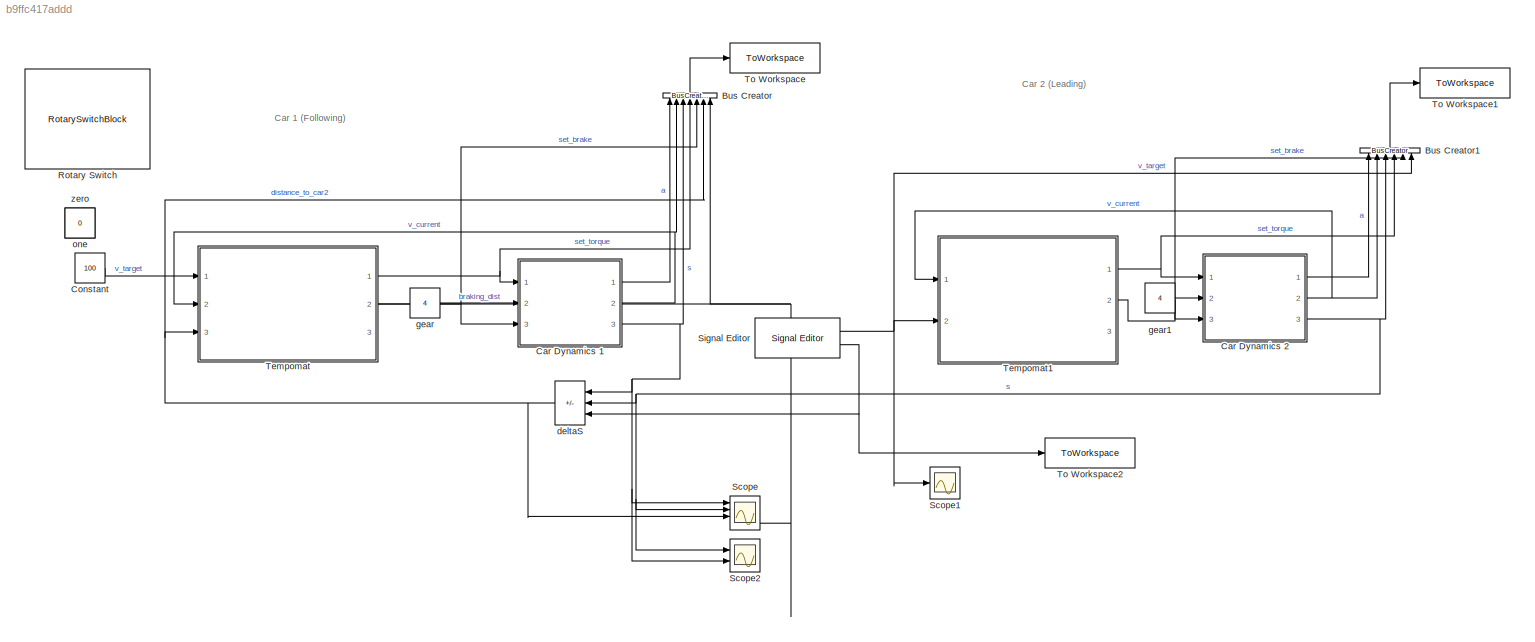
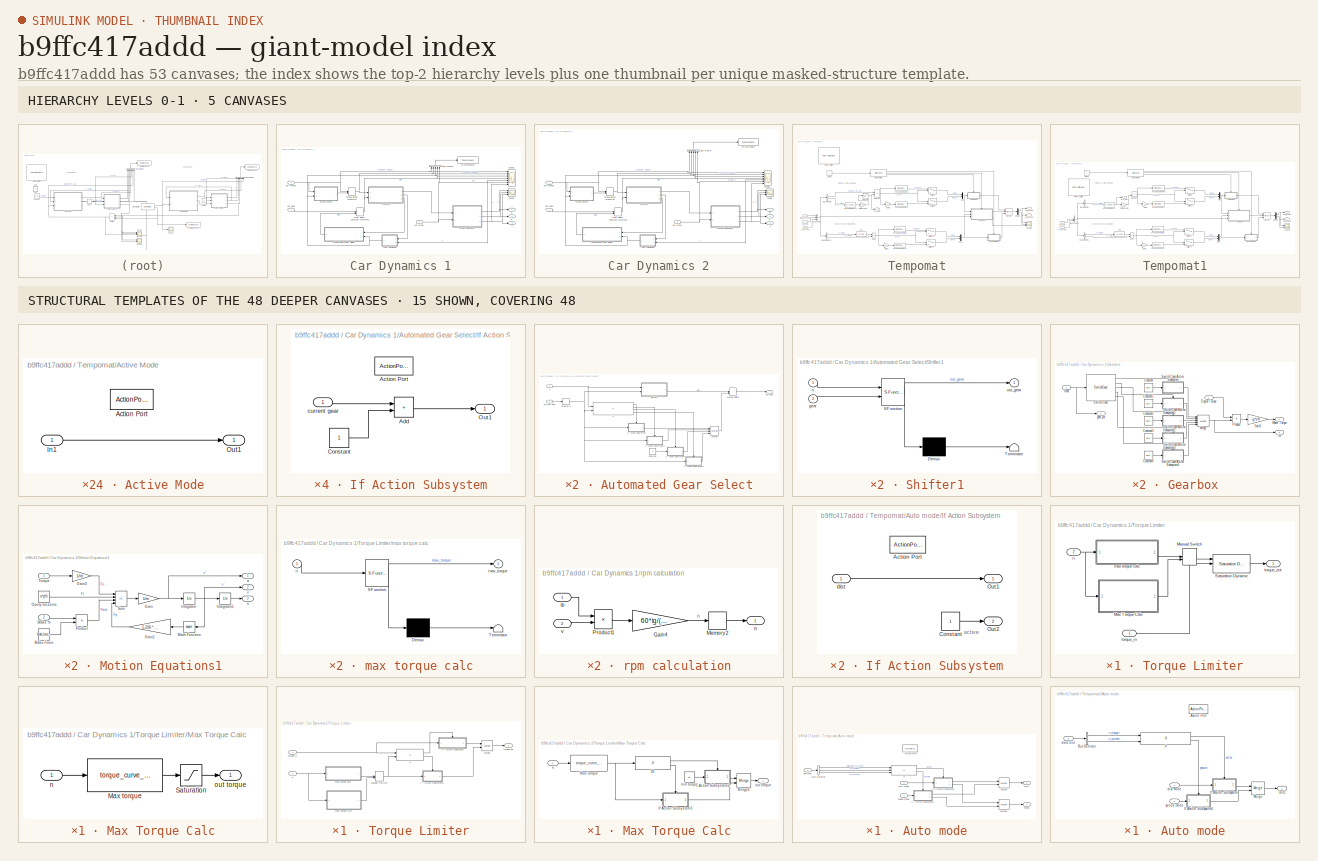
[diagram: thumbnail index - top-2 hierarchy levels (5 canvases) + 15 structural-template representatives of the remaining 48 canvases]
MODEL slx_b9ffc417addd
KIND model
CONFIG AbsTol = auto
CONFIG EnableMultiTasking = off
CONFIG FixedStep = 0.01
CONFIG MaxStep = auto
CONFIG MinStep = auto
CONFIG RelTol = 1e-3
CONFIG SampleTimeConstraint = Unconstrained
CONFIG Solver = FixedStepAuto
CONFIG SolverName = FixedStepAuto
CONFIG StartTime = 0.0
CONFIG StopTime = 120
BLOCK [BusCreator] Bus Creator
  DisplayOption = bar
  InheritFromInputs = on
  Inputs = 7
  NameLocation = right
  Ports = [7, 1]
BLOCK [BusCreator] Bus Creator1
  DisplayOption = bar
  InheritFromInputs = on
  Inputs = 6
  NameLocation = right
  Ports = [6, 1]
BLOCK [SubSystem] Car Dynamics 1
  Ports = [3, 3]
  RequestExecContextInheritance = off
BLOCK [SubSystem] Car Dynamics 1/Automated Gear Select
  NameLocation = top
  Ports = [2, 1]
  RequestExecContextInheritance = off
BLOCK [Constant] Car Dynamics 1/Automated Gear Select/Constant
BLOCK [If] Car Dynamics 1/Automated Gear Select/If
  ElseIfExpressions = (u1 < rpm_gear_down) & (u2 > 1), u2<1
  IfExpression = (u1 > rpm_gear_up) & u2 < 5
  NumInputs = 2
  Ports = [2, 4]
BLOCK [SubSystem] Car Dynamics 1/Automated Gear Select/If Action Subsystem
  Ports = [1, 1, 0, 0, 0, 0, 0, 1]
  RequestExecContextInheritance = off
  TreatAsAtomicUnit = on
BLOCK [ActionPort] Car Dynamics 1/Automated Gear Select/If Action Subsystem/Action Port
  ActionPortLabel = if((u1 > rpm_gear_up) & u2 < 5)
BLOCK [Sum] Car Dynamics 1/Automated Gear Select/If Action Subsystem/Add
  IconShape = rectangular
  Ports = [2, 1]
BLOCK [Constant] Car Dynamics 1/Automated Gear Select/If Action Subsystem/Constant
BLOCK [Outport] Car Dynamics 1/Automated Gear Select/If Action Subsystem/Out1
BLOCK [Inport] Car Dynamics 1/Automated Gear Select/If Action Subsystem/current gear
BLOCK [SubSystem] Car Dynamics 1/Automated Gear Select/If Action Subsystem1
  Ports = [1, 1, 0, 0, 0, 0, 0, 1]
  RequestExecContextInheritance = off
  TreatAsAtomicUnit = on
BLOCK [ActionPort] Car Dynamics 1/Automated Gear Select/If Action Subsystem1/Action Port
  ActionPortLabel = elseif((u1 < rpm_gear_down) & (u2 > 1))
BLOCK [Constant] Car Dynamics 1/Automated Gear Select/If Action Subsystem1/Constant
BLOCK [Outport] Car Dynamics 1/Automated Gear Select/If Action Subsystem1/Out1
BLOCK [Sum] Car Dynamics 1/Automated Gear Select/If Action Subsystem1/Subtract
  IconShape = rectangular
  Inputs = +-
  Ports = [2, 1]
BLOCK [Inport] Car Dynamics 1/Automated Gear Select/If Action Subsystem1/current gear
BLOCK [SubSystem] Car Dynamics 1/Automated Gear Select/If Action Subsystem2
  Ports = [1, 1, 0, 0, 0, 0, 0, 1]
  RequestExecContextInheritance = off
  TreatAsAtomicUnit = on
BLOCK [ActionPort] Car Dynamics 1/Automated Gear Select/If Action Subsystem2/Action Port
  ActionPortLabel = else
BLOCK [Outport] Car Dynamics 1/Automated Gear Select/If Action Subsystem2/Out1
BLOCK [Inport] Car Dynamics 1/Automated Gear Select/If Action Subsystem2/current gear
BLOCK [SubSystem] Car Dynamics 1/Automated Gear Select/If Action Subsystem3
  Ports = [1, 1, 0, 0, 0, 0, 0, 1]
  RequestExecContextInheritance = off
  TreatAsAtomicUnit = on
BLOCK [ActionPort] Car Dynamics 1/Automated Gear Select/If Action Subsystem3/Action Port
  ActionPortLabel = elseif( u2<1)
BLOCK [Inport] Car Dynamics 1/Automated Gear Select/If Action Subsystem3/In1
BLOCK [Outport] Car Dynamics 1/Automated Gear Select/If Action Subsystem3/Out1
BLOCK [ManualSwitch] Car Dynamics 1/Automated Gear Select/Manual Switch
  CurrentSetting = 0
BLOCK [Memory] Car Dynamics 1/Automated Gear Select/Memory3
BLOCK [Merge] Car Dynamics 1/Automated Gear Select/Merge
  Inputs = 4
  Ports = [4, 1]
BLOCK [SubSystem] Car Dynamics 1/Automated Gear Select/Shifter1
  ErrorFcn = Stateflow.Translate.translate
  PermitHierarchicalResolution = ExplicitOnly
  Ports = [2, 1]
  RequestExecContextInheritance = off
  SFBlockType = MATLAB Function
  TreatAsAtomicUnit = on
BLOCK [Demux] Car Dynamics 1/Automated Gear Select/Shifter1/ Demux 
  Outputs = 1
  Ports = [1, 1]
BLOCK [S-Function] Car Dynamics 1/Automated Gear Select/Shifter1/ SFunction 
  EnableBusSupport = on
  FunctionName = sf_sfun
  PortCounts = [2 2]
  Ports = [2, 2]
  SFcnIsStateOwnerBlock = off
  SFunctionDeploymentMode = off
  Tag = Stateflow S-Function 3
BLOCK [Terminator] Car Dynamics 1/Automated Gear Select/Shifter1/ Terminator 
BLOCK [Inport] Car Dynamics 1/Automated Gear Select/Shifter1/gear
  Port = 2
BLOCK [Inport] Car Dynamics 1/Automated Gear Select/Shifter1/n
BLOCK [Outport] Car Dynamics 1/Automated Gear Select/Shifter1/out_gear
BLOCK [Inport] Car Dynamics 1/Automated Gear Select/current gear
  NameLocation = top
BLOCK [Inport] Car Dynamics 1/Automated Gear Select/n
  Port = 2
BLOCK [Outport] Car Dynamics 1/Automated Gear Select/out_gear
BLOCK [BusCreator] Car Dynamics 1/Bus Creator
  DisplayOption = bar
  InheritFromInputs = on
  Inputs = 5
  NameLocation = right
  Ports = [5, 1]
BLOCK [ManualSwitch] Car Dynamics 1/Gear Select: Constant//Automatic
  CurrentSetting = 0
BLOCK [SubSystem] Car Dynamics 1/Gearbox
  Ports = [2, 3]
  RequestExecContextInheritance = off
BLOCK [Constant] Car Dynamics 1/Gearbox/Constant
  Value = ibi(1)
BLOCK [Constant] Car Dynamics 1/Gearbox/Constant1
  Value = ibi(2)
BLOCK [Constant] Car Dynamics 1/Gearbox/Constant2
  Value = ibi(3)
BLOCK [Constant] Car Dynamics 1/Gearbox/Constant3
  Value = ibi(4)
BLOCK [Constant] Car Dynamics 1/Gearbox/Constant4
  Value = ibi(5)
BLOCK [Inport] Car Dynamics 1/Gearbox/Engine Torque
BLOCK [Gain] Car Dynamics 1/Gearbox/Gain5
  Gain = ig*eff
BLOCK [Inport] Car Dynamics 1/Gearbox/Gear
  Port = 2
BLOCK [Merge] Car Dynamics 1/Gearbox/Merge
  Inputs = 5
  Ports = [5, 1]
BLOCK [Product] Car Dynamics 1/Gearbox/Product
  Ports = [2, 1]
BLOCK [SwitchCase] Car Dynamics 1/Gearbox/Switch Case
  CaseConditions = {[0,1],2,3,4,5}
  Ports = [1, 5]
  ShowDefaultCase = off
BLOCK [SubSystem] Car Dynamics 1/Gearbox/Switch Case Action Subsystem
  Ports = [1, 1, 0, 0, 0, 0, 0, 1]
  RequestExecContextInheritance = off
  TreatAsAtomicUnit = on
BLOCK [ActionPort] Car Dynamics 1/Gearbox/Switch Case Action Subsystem/Action Port
  ActionPortLabel = case [ 0 1 ]:
BLOCK [Inport] Car Dynamics 1/Gearbox/Switch Case Action Subsystem/Engine Torque
BLOCK [Outport] Car Dynamics 1/Gearbox/Switch Case Action Subsystem/Out1
BLOCK [SubSystem] Car Dynamics 1/Gearbox/Switch Case Action Subsystem1
  Ports = [1, 1, 0, 0, 0, 0, 0, 1]
  RequestExecContextInheritance = off
  TreatAsAtomicUnit = on
BLOCK [ActionPort] Car Dynamics 1/Gearbox/Switch Case Action Subsystem1/Action Port
  ActionPortLabel = case [ 2 ]:
BLOCK [Inport] Car Dynamics 1/Gearbox/Switch Case Action Subsystem1/Engine Torque
BLOCK [Outport] Car Dynamics 1/Gearbox/Switch Case Action Subsystem1/Out1
BLOCK [SubSystem] Car Dynamics 1/Gearbox/Switch Case Action Subsystem2
  Ports = [1, 1, 0, 0, 0, 0, 0, 1]
  RequestExecContextInheritance = off
  TreatAsAtomicUnit = on
BLOCK [ActionPort] Car Dynamics 1/Gearbox/Switch Case Action Subsystem2/Action Port
  ActionPortLabel = case [ 3 ]:
BLOCK [Inport] Car Dynamics 1/Gearbox/Switch Case Action Subsystem2/Engine Torque
BLOCK [Outport] Car Dynamics 1/Gearbox/Switch Case Action Subsystem2/Out1
BLOCK [SubSystem] Car Dynamics 1/Gearbox/Switch Case Action Subsystem3
  Ports = [1, 1, 0, 0, 0, 0, 0, 1]
  RequestExecContextInheritance = off
  TreatAsAtomicUnit = on
BLOCK [ActionPort] Car Dynamics 1/Gearbox/Switch Case Action Subsystem3/Action Port
  ActionPortLabel = case [ 4 ]:
BLOCK [Inport] Car Dynamics 1/Gearbox/Switch Case Action Subsystem3/Engine Torque
BLOCK [Outport] Car Dynamics 1/Gearbox/Switch Case Action Subsystem3/Out1
BLOCK [SubSystem] Car Dynamics 1/Gearbox/Switch Case Action Subsystem4
  Ports = [1, 1, 0, 0, 0, 0, 0, 1]
  RequestExecContextInheritance = off
  TreatAsAtomicUnit = on
BLOCK [ActionPort] Car Dynamics 1/Gearbox/Switch Case Action Subsystem4/Action Port
  ActionPortLabel = case [ 5 ]:
BLOCK [Inport] Car Dynamics 1/Gearbox/Switch Case Action Subsystem4/Engine Torque
BLOCK [Outport] Car Dynamics 1/Gearbox/Switch Case Action Subsystem4/Out1
BLOCK [Outport] Car Dynamics 1/Gearbox/Wheel Torque
BLOCK [Outport] Car Dynamics 1/Gearbox/gear_out
  Port = 3
BLOCK [Outport] Car Dynamics 1/Gearbox/ib
  Port = 2
BLOCK [SubSystem] Car Dynamics 1/Motion Equations1
  Ports = [2, 3]
  RequestExecContextInheritance = off
  VariantControl = Choice
BLOCK [Inport] Car Dynamics 1/Motion Equations1/Brake %
  Port = 2
BLOCK [Constant] Car Dynamics 1/Motion Equations1/Brake Force
  Value = brake_force/100
BLOCK [Gain] Car Dynamics 1/Motion Equations1/Gain
  Gain = 1/m
BLOCK [Gain] Car Dynamics 1/Motion Equations1/Gain1
  Gain = 1.226 * A * cx / 2
  NameLocation = top
BLOCK [Gain] Car Dynamics 1/Motion Equations1/Gain3
  Gain = 1/rd
BLOCK [Integrator] Car Dynamics 1/Motion Equations1/Integrator
  InitialCondition = car1_start_v
  LimitOutput = on
  LowerSaturationLimit = 0
  Ports = [1, 1]
BLOCK [Integrator] Car Dynamics 1/Motion Equations1/Integrator1
  InitialCondition = car1_start_s
  Ports = [1, 1]
BLOCK [Math] Car Dynamics 1/Motion Equations1/Math Function
  NameLocation = top
  Operator = square
  Ports = [1, 1]
BLOCK [Constant] Car Dynamics 1/Motion Equations1/Opory toczenia
  Value = m*g*f0
BLOCK [Product] Car Dynamics 1/Motion Equations1/Product
  Ports = [2, 1]
BLOCK [Sum] Car Dynamics 1/Motion Equations1/Sum
  IconShape = rectangular
  Inputs = +---
  Ports = [4, 1]
BLOCK [Inport] Car Dynamics 1/Motion Equations1/Torque
BLOCK [Outport] Car Dynamics 1/Motion Equations1/a
BLOCK [Outport] Car Dynamics 1/Motion Equations1/s
  Port = 3
BLOCK [Outport] Car Dynamics 1/Motion Equations1/v
  Port = 2
BLOCK [Scope] Car Dynamics 1/Scope
  Floating = off
  NumInputPorts = 3
  Ports = [3]
  ScopeSpecificationString = Simulink.scopes.TimeScopeBlockCfg('CurrentConfiguration', extmgr.ConfigurationSet(extmgr.Configuration('Core','General UI',true),extmgr.Configuration('Core','Source UI',true),extmgr.Configuration('Sources','WiredSimulink',true),extmgr.Configuration('Visuals','Time Domain',true,'SerializedDisplays',{struct('MinYLimReal','-0.43728','MaxYLimReal','1.78453','YLabelReal','','MinYLimMag','0.00000','MaxY...<+2701ch>
BLOCK [Scope] Car Dynamics 1/Scope1
  Floating = off
  NumInputPorts = 7
  Ports = [7]
  ScopeSpecificationString = Simulink.scopes.TimeScopeBlockCfg('CurrentConfiguration', extmgr.ConfigurationSet(extmgr.Configuration('Core','General UI',true),extmgr.Configuration('Core','Source UI',true),extmgr.Configuration('Sources','WiredSimulink',true,'DataLoggingVariableName','ScopeData1'),extmgr.Configuration('Visuals','Time Domain',true,'SerializedDisplays',{struct('MinYLimReal','-18.5','MaxYLimReal','166.5','YLabelRea...<+6155ch>
BLOCK [ToWorkspace] Car Dynamics 1/To Workspace
  FixptAsFi = on
  MaxDataPoints = inf
  Ports = [1]
  SampleTime = -1
  SaveFormat = Timeseries
  VariableName = dynamics1
BLOCK [SubSystem] Car Dynamics 1/Torque Limiter
  Ports = [2, 1]
  RequestExecContextInheritance = off
BLOCK [ManualSwitch] Car Dynamics 1/Torque Limiter/Manual Switch
  CurrentSetting = 0
BLOCK [SubSystem] Car Dynamics 1/Torque Limiter/Max Torque Calc
  Ports = [1, 1]
  RequestExecContextInheritance = off
BLOCK [Fcn] Car Dynamics 1/Torque Limiter/Max Torque Calc/Max torque
  Expr = torque_curve_f(1)*u(1)^2 + torque_curve_f(2)*u(1)+torque_curve_f(3)
BLOCK [Saturate] Car Dynamics 1/Torque Limiter/Max Torque Calc/Saturation
  LowerLimit = 30
  UpperLimit = inf
BLOCK [Inport] Car Dynamics 1/Torque Limiter/Max Torque Calc/n
BLOCK [Outport] Car Dynamics 1/Torque Limiter/Max Torque Calc/out torque
BLOCK [Reference] Car Dynamics 1/Torque Limiter/Saturation Dynamic  REF=simulink/Discontinuities/Saturation
Dynamic
  Ports = [3, 1]
  SourceBlock = simulink/Discontinuities/Saturation\nDynamic
  SourceProductBaseCode = SL
  SourceType = Saturation Dynamic
BLOCK [SubSystem] Car Dynamics 1/Torque Limiter/max torque calc
  ErrorFcn = Stateflow.Translate.translate
  PermitHierarchicalResolution = ExplicitOnly
  Ports = [1, 1]
  RequestExecContextInheritance = off
  SFBlockType = MATLAB Function
  TreatAsAtomicUnit = on
BLOCK [Demux] Car Dynamics 1/Torque Limiter/max torque calc/ Demux 
  Outputs = 1
  Ports = [1, 1]
BLOCK [S-Function] Car Dynamics 1/Torque Limiter/max torque calc/ SFunction 
  EnableBusSupport = on
  FunctionName = sf_sfun
  Parameters = torque_curve_f
  PortCounts = [1 2]
  Ports = [1, 2]
  SFcnIsStateOwnerBlock = off
  SFunctionDeploymentMode = off
  Tag = Stateflow S-Function 2
BLOCK [Terminator] Car Dynamics 1/Torque Limiter/max torque calc/ Terminator 
BLOCK [Outport] Car Dynamics 1/Torque Limiter/max torque calc/max_torque
BLOCK [Inport] Car Dynamics 1/Torque Limiter/max torque calc/n
BLOCK [Inport] Car Dynamics 1/Torque Limiter/n
  Port = 2
BLOCK [Inport] Car Dynamics 1/Torque Limiter/torque_in
BLOCK [Outport] Car Dynamics 1/Torque Limiter/torque_out
BLOCK [ManualSwitch] Car Dynamics 1/Torque limiter bypass//on
  CurrentSetting = 0
BLOCK [Outport] Car Dynamics 1/a
BLOCK [SubSystem] Car Dynamics 1/rpm calculation
  NameLocation = top
  Ports = [2, 1]
  RequestExecContextInheritance = off
BLOCK [Gain] Car Dynamics 1/rpm calculation/Gain4
  Gain = 60*ig/(2*pi*rd)
BLOCK [Memory] Car Dynamics 1/rpm calculation/Memory2
BLOCK [Product] Car Dynamics 1/rpm calculation/Product1
  Ports = [2, 1]
BLOCK [Inport] Car Dynamics 1/rpm calculation/ib
  NameLocation = top
BLOCK [Outport] Car Dynamics 1/rpm calculation/n
  NameLocation = top
BLOCK [Inport] Car Dynamics 1/rpm calculation/v
  NameLocation = top
  Port = 2
BLOCK [Outport] Car Dynamics 1/s
  Port = 3
BLOCK [Inport] Car Dynamics 1/set brake
  Port = 3
BLOCK [Inport] Car Dynamics 1/set gear
  Port = 2
BLOCK [Inport] Car Dynamics 1/set torque
BLOCK [Outport] Car Dynamics 1/v
  Port = 2
BLOCK [SubSystem] Car Dynamics 2
  Ports = [3, 3]
  RequestExecContextInheritance = off
BLOCK [SubSystem] Car Dynamics 2/Automated Gear Select
  NameLocation = top
  Ports = [2, 1]
  RequestExecContextInheritance = off
BLOCK [Constant] Car Dynamics 2/Automated Gear Select/Constant
BLOCK [If] Car Dynamics 2/Automated Gear Select/If
  ElseIfExpressions = (u1 < rpm_gear_down) & (u2 > 1), u2<1
  IfExpression = (u1 > rpm_gear_up) & u2 < 5
  NumInputs = 2
  Ports = [2, 4]
BLOCK [SubSystem] Car Dynamics 2/Automated Gear Select/If Action Subsystem
  Ports = [1, 1, 0, 0, 0, 0, 0, 1]
  RequestExecContextInheritance = off
  TreatAsAtomicUnit = on
BLOCK [ActionPort] Car Dynamics 2/Automated Gear Select/If Action Subsystem/Action Port
  ActionPortLabel = if((u1 > rpm_gear_up) & u2 < 5)
BLOCK [Sum] Car Dynamics 2/Automated Gear Select/If Action Subsystem/Add
  IconShape = rectangular
  Ports = [2, 1]
BLOCK [Constant] Car Dynamics 2/Automated Gear Select/If Action Subsystem/Constant
BLOCK [Outport] Car Dynamics 2/Automated Gear Select/If Action Subsystem/Out1
BLOCK [Inport] Car Dynamics 2/Automated Gear Select/If Action Subsystem/current gear
BLOCK [SubSystem] Car Dynamics 2/Automated Gear Select/If Action Subsystem1
  Ports = [1, 1, 0, 0, 0, 0, 0, 1]
  RequestExecContextInheritance = off
  TreatAsAtomicUnit = on
BLOCK [ActionPort] Car Dynamics 2/Automated Gear Select/If Action Subsystem1/Action Port
  ActionPortLabel = elseif((u1 < rpm_gear_down) & (u2 > 1))
BLOCK [Constant] Car Dynamics 2/Automated Gear Select/If Action Subsystem1/Constant
BLOCK [Outport] Car Dynamics 2/Automated Gear Select/If Action Subsystem1/Out1
BLOCK [Sum] Car Dynamics 2/Automated Gear Select/If Action Subsystem1/Subtract
  IconShape = rectangular
  Inputs = +-
  Ports = [2, 1]
BLOCK [Inport] Car Dynamics 2/Automated Gear Select/If Action Subsystem1/current gear
BLOCK [SubSystem] Car Dynamics 2/Automated Gear Select/If Action Subsystem2
  Ports = [1, 1, 0, 0, 0, 0, 0, 1]
  RequestExecContextInheritance = off
  TreatAsAtomicUnit = on
BLOCK [ActionPort] Car Dynamics 2/Automated Gear Select/If Action Subsystem2/Action Port
  ActionPortLabel = else
BLOCK [Outport] Car Dynamics 2/Automated Gear Select/If Action Subsystem2/Out1
BLOCK [Inport] Car Dynamics 2/Automated Gear Select/If Action Subsystem2/current gear
BLOCK [SubSystem] Car Dynamics 2/Automated Gear Select/If Action Subsystem3
  Ports = [1, 1, 0, 0, 0, 0, 0, 1]
  RequestExecContextInheritance = off
  TreatAsAtomicUnit = on
BLOCK [ActionPort] Car Dynamics 2/Automated Gear Select/If Action Subsystem3/Action Port
  ActionPortLabel = elseif( u2<1)
BLOCK [Inport] Car Dynamics 2/Automated Gear Select/If Action Subsystem3/In1
BLOCK [Outport] Car Dynamics 2/Automated Gear Select/If Action Subsystem3/Out1
BLOCK [ManualSwitch] Car Dynamics 2/Automated Gear Select/Manual Switch
  CurrentSetting = 0
BLOCK [Memory] Car Dynamics 2/Automated Gear Select/Memory3
BLOCK [Merge] Car Dynamics 2/Automated Gear Select/Merge
  Inputs = 4
  Ports = [4, 1]
BLOCK [SubSystem] Car Dynamics 2/Automated Gear Select/Shifter1
  ErrorFcn = Stateflow.Translate.translate
  PermitHierarchicalResolution = ExplicitOnly
  Ports = [2, 1]
  RequestExecContextInheritance = off
  SFBlockType = MATLAB Function
  TreatAsAtomicUnit = on
BLOCK [Demux] Car Dynamics 2/Automated Gear Select/Shifter1/ Demux 
  Outputs = 1
  Ports = [1, 1]
BLOCK [S-Function] Car Dynamics 2/Automated Gear Select/Shifter1/ SFunction 
  EnableBusSupport = on
  FunctionName = sf_sfun
  PortCounts = [2 2]
  Ports = [2, 2]
  SFcnIsStateOwnerBlock = off
  SFunctionDeploymentMode = off
  Tag = Stateflow S-Function 1
BLOCK [Terminator] Car Dynamics 2/Automated Gear Select/Shifter1/ Terminator 
BLOCK [Inport] Car Dynamics 2/Automated Gear Select/Shifter1/gear
  Port = 2
BLOCK [Inport] Car Dynamics 2/Automated Gear Select/Shifter1/n
BLOCK [Outport] Car Dynamics 2/Automated Gear Select/Shifter1/out_gear
BLOCK [Inport] Car Dynamics 2/Automated Gear Select/current gear
  NameLocation = top
BLOCK [Inport] Car Dynamics 2/Automated Gear Select/n
  Port = 2
BLOCK [Outport] Car Dynamics 2/Automated Gear Select/out_gear
BLOCK [BusCreator] Car Dynamics 2/Bus Creator
  DisplayOption = bar
  InheritFromInputs = on
  Inputs = 5
  NameLocation = right
  Ports = [5, 1]
BLOCK [ManualSwitch] Car Dynamics 2/Gear Select: Constant//Automatic
  CurrentSetting = 0
BLOCK [SubSystem] Car Dynamics 2/Gearbox
  Ports = [2, 3]
  RequestExecContextInheritance = off
BLOCK [Constant] Car Dynamics 2/Gearbox/Constant
  Value = ibi(1)
BLOCK [Constant] Car Dynamics 2/Gearbox/Constant1
  Value = ibi(2)
BLOCK [Constant] Car Dynamics 2/Gearbox/Constant2
  Value = ibi(3)
BLOCK [Constant] Car Dynamics 2/Gearbox/Constant3
  Value = ibi(4)
BLOCK [Constant] Car Dynamics 2/Gearbox/Constant4
  Value = ibi(5)
BLOCK [Inport] Car Dynamics 2/Gearbox/Engine Torque
BLOCK [Gain] Car Dynamics 2/Gearbox/Gain5
  Gain = ig*eff
BLOCK [Inport] Car Dynamics 2/Gearbox/Gear
  Port = 2
BLOCK [Merge] Car Dynamics 2/Gearbox/Merge
  Inputs = 5
  Ports = [5, 1]
BLOCK [Product] Car Dynamics 2/Gearbox/Product
  Ports = [2, 1]
BLOCK [SwitchCase] Car Dynamics 2/Gearbox/Switch Case
  CaseConditions = {[0,1],2,3,4,5}
  Ports = [1, 5]
  ShowDefaultCase = off
BLOCK [SubSystem] Car Dynamics 2/Gearbox/Switch Case Action Subsystem
  Ports = [1, 1, 0, 0, 0, 0, 0, 1]
  RequestExecContextInheritance = off
  TreatAsAtomicUnit = on
BLOCK [ActionPort] Car Dynamics 2/Gearbox/Switch Case Action Subsystem/Action Port
  ActionPortLabel = case [ 0 1 ]:
BLOCK [Inport] Car Dynamics 2/Gearbox/Switch Case Action Subsystem/Engine Torque
BLOCK [Outport] Car Dynamics 2/Gearbox/Switch Case Action Subsystem/Out1
BLOCK [SubSystem] Car Dynamics 2/Gearbox/Switch Case Action Subsystem1
  Ports = [1, 1, 0, 0, 0, 0, 0, 1]
  RequestExecContextInheritance = off
  TreatAsAtomicUnit = on
BLOCK [ActionPort] Car Dynamics 2/Gearbox/Switch Case Action Subsystem1/Action Port
  ActionPortLabel = case [ 2 ]:
BLOCK [Inport] Car Dynamics 2/Gearbox/Switch Case Action Subsystem1/Engine Torque
BLOCK [Outport] Car Dynamics 2/Gearbox/Switch Case Action Subsystem1/Out1
BLOCK [SubSystem] Car Dynamics 2/Gearbox/Switch Case Action Subsystem2
  Ports = [1, 1, 0, 0, 0, 0, 0, 1]
  RequestExecContextInheritance = off
  TreatAsAtomicUnit = on
BLOCK [ActionPort] Car Dynamics 2/Gearbox/Switch Case Action Subsystem2/Action Port
  ActionPortLabel = case [ 3 ]:
BLOCK [Inport] Car Dynamics 2/Gearbox/Switch Case Action Subsystem2/Engine Torque
BLOCK [Outport] Car Dynamics 2/Gearbox/Switch Case Action Subsystem2/Out1
BLOCK [SubSystem] Car Dynamics 2/Gearbox/Switch Case Action Subsystem3
  Ports = [1, 1, 0, 0, 0, 0, 0, 1]
  RequestExecContextInheritance = off
  TreatAsAtomicUnit = on
BLOCK [ActionPort] Car Dynamics 2/Gearbox/Switch Case Action Subsystem3/Action Port
  ActionPortLabel = case [ 4 ]:
BLOCK [Inport] Car Dynamics 2/Gearbox/Switch Case Action Subsystem3/Engine Torque
BLOCK [Outport] Car Dynamics 2/Gearbox/Switch Case Action Subsystem3/Out1
BLOCK [SubSystem] Car Dynamics 2/Gearbox/Switch Case Action Subsystem4
  Ports = [1, 1, 0, 0, 0, 0, 0, 1]
  RequestExecContextInheritance = off
  TreatAsAtomicUnit = on
BLOCK [ActionPort] Car Dynamics 2/Gearbox/Switch Case Action Subsystem4/Action Port
  ActionPortLabel = case [ 5 ]:
BLOCK [Inport] Car Dynamics 2/Gearbox/Switch Case Action Subsystem4/Engine Torque
BLOCK [Outport] Car Dynamics 2/Gearbox/Switch Case Action Subsystem4/Out1
BLOCK [Outport] Car Dynamics 2/Gearbox/Wheel Torque
BLOCK [Outport] Car Dynamics 2/Gearbox/gear_out
  Port = 3
BLOCK [Outport] Car Dynamics 2/Gearbox/ib
  Port = 2
BLOCK [SubSystem] Car Dynamics 2/Motion Equations1
  Ports = [2, 3]
  RequestExecContextInheritance = off
  VariantControl = Choice
BLOCK [Inport] Car Dynamics 2/Motion Equations1/Brake %
  Port = 2
BLOCK [Constant] Car Dynamics 2/Motion Equations1/Brake Force
  Value = brake_force/100
BLOCK [Gain] Car Dynamics 2/Motion Equations1/Gain
  Gain = 1/m
BLOCK [Gain] Car Dynamics 2/Motion Equations1/Gain1
  Gain = 1.226 * A * cx / 2
  NameLocation = top
BLOCK [Gain] Car Dynamics 2/Motion Equations1/Gain3
  Gain = 1/rd
BLOCK [Integrator] Car Dynamics 2/Motion Equations1/Integrator
  InitialCondition = car2_start_v
  LimitOutput = on
  LowerSaturationLimit = 0
  Ports = [1, 1]
BLOCK [Integrator] Car Dynamics 2/Motion Equations1/Integrator1
  InitialCondition = car2_start_s
  Ports = [1, 1]
BLOCK [Math] Car Dynamics 2/Motion Equations1/Math Function
  NameLocation = top
  Operator = square
  Ports = [1, 1]
BLOCK [Constant] Car Dynamics 2/Motion Equations1/Opory toczenia
  Value = m*g*f0
BLOCK [Product] Car Dynamics 2/Motion Equations1/Product
  Ports = [2, 1]
BLOCK [Sum] Car Dynamics 2/Motion Equations1/Sum
  IconShape = rectangular
  Inputs = +---
  Ports = [4, 1]
BLOCK [Inport] Car Dynamics 2/Motion Equations1/Torque
BLOCK [Outport] Car Dynamics 2/Motion Equations1/a
BLOCK [Outport] Car Dynamics 2/Motion Equations1/s
  Port = 3
BLOCK [Outport] Car Dynamics 2/Motion Equations1/v
  Port = 2
BLOCK [Scope] Car Dynamics 2/Scope
  Floating = off
  NumInputPorts = 3
  Ports = [3]
  ScopeSpecificationString = Simulink.scopes.TimeScopeBlockCfg('CurrentConfiguration', extmgr.ConfigurationSet(extmgr.Configuration('Core','General UI',true),extmgr.Configuration('Core','Source UI',true),extmgr.Configuration('Sources','WiredSimulink',true),extmgr.Configuration('Visuals','Time Domain',true,'SerializedDisplays',{struct('MinYLimReal','-1.83646','MaxYLimReal','6.35637','YLabelReal','','MinYLimMag','0.00000','MaxY...<+2704ch>
BLOCK [Scope] Car Dynamics 2/Scope1
  Floating = off
  NumInputPorts = 7
  Ports = [7]
  ScopeSpecificationString = Simulink.scopes.TimeScopeBlockCfg('CurrentConfiguration', extmgr.ConfigurationSet(extmgr.Configuration('Core','General UI',true),extmgr.Configuration('Core','Source UI',true),extmgr.Configuration('Sources','WiredSimulink',true,'DataLoggingVariableName','ScopeData1'),extmgr.Configuration('Visuals','Time Domain',true,'SerializedDisplays',{struct('MinYLimReal','-18.5','MaxYLimReal','166.5','YLabelRea...<+6143ch>
BLOCK [ToWorkspace] Car Dynamics 2/To Workspace
  FixptAsFi = on
  MaxDataPoints = inf
  Ports = [1]
  SampleTime = -1
  SaveFormat = Timeseries
  VariableName = dynamics2
BLOCK [SubSystem] Car Dynamics 2/Torque Limiter
  Ports = [2, 1]
  RequestExecContextInheritance = off
BLOCK [If] Car Dynamics 2/Torque Limiter/If
  IfExpression = u1<u2
  NumInputs = 2
  Ports = [2, 2]
BLOCK [SubSystem] Car Dynamics 2/Torque Limiter/If Action Subsystem
  Ports = [1, 1, 0, 0, 0, 0, 0, 1]
  RequestExecContextInheritance = off
  TreatAsAtomicUnit = on
BLOCK [ActionPort] Car Dynamics 2/Torque Limiter/If Action Subsystem/Action Port
  ActionPortLabel = if(u1<u2)
BLOCK [Outport] Car Dynamics 2/Torque Limiter/If Action Subsystem/Out1
BLOCK [Inport] Car Dynamics 2/Torque Limiter/If Action Subsystem/torque_in
BLOCK [SubSystem] Car Dynamics 2/Torque Limiter/If Action Subsystem1
  Ports = [1, 1, 0, 0, 0, 0, 0, 1]
  RequestExecContextInheritance = off
  TreatAsAtomicUnit = on
BLOCK [ActionPort] Car Dynamics 2/Torque Limiter/If Action Subsystem1/Action Port
  ActionPortLabel = else
BLOCK [Inport] Car Dynamics 2/Torque Limiter/If Action Subsystem1/In1
BLOCK [Outport] Car Dynamics 2/Torque Limiter/If Action Subsystem1/Out1
BLOCK [ManualSwitch] Car Dynamics 2/Torque Limiter/Manual Switch
  CurrentSetting = 0
BLOCK [SubSystem] Car Dynamics 2/Torque Limiter/Max Torque Calc
  Ports = [1, 1]
  RequestExecContextInheritance = off
BLOCK [SubSystem] Car Dynamics 2/Torque Limiter/Max Torque Calc/If Action Subsystem2
  Ports = [1, 1, 0, 0, 0, 0, 0, 1]
  RequestExecContextInheritance = off
  TreatAsAtomicUnit = on
BLOCK [ActionPort] Car Dynamics 2/Torque Limiter/Max Torque Calc/If Action Subsystem2/Action Port
  ActionPortLabel = if(u1 < 40)
BLOCK [Inport] Car Dynamics 2/Torque Limiter/Max Torque Calc/If Action Subsystem2/In1
BLOCK [Outport] Car Dynamics 2/Torque Limiter/Max Torque Calc/If Action Subsystem2/Out1
BLOCK [SubSystem] Car Dynamics 2/Torque Limiter/Max Torque Calc/If Action Subsystem3
  Ports = [1, 1, 0, 0, 0, 0, 0, 1]
  RequestExecContextInheritance = off
  TreatAsAtomicUnit = on
BLOCK [ActionPort] Car Dynamics 2/Torque Limiter/Max Torque Calc/If Action Subsystem3/Action Port
  ActionPortLabel = else
BLOCK [Inport] Car Dynamics 2/Torque Limiter/Max Torque Calc/If Action Subsystem3/In1
BLOCK [Outport] Car Dynamics 2/Torque Limiter/Max Torque Calc/If Action Subsystem3/Out1
BLOCK [If] Car Dynamics 2/Torque Limiter/Max Torque Calc/If1
  IfExpression = u1 < 40
  Ports = [1, 2]
BLOCK [Fcn] Car Dynamics 2/Torque Limiter/Max Torque Calc/Max torque
  Expr = torque_curve_f(1)*u(1)^2 + torque_curve_f(2)*u(1)+torque_curve_f(3)
BLOCK [Merge] Car Dynamics 2/Torque Limiter/Max Torque Calc/Merge1
  Ports = [2, 1]
BLOCK [Constant] Car Dynamics 2/Torque Limiter/Max Torque Calc/min torque
  Value = 40
BLOCK [Inport] Car Dynamics 2/Torque Limiter/Max Torque Calc/n
BLOCK [Outport] Car Dynamics 2/Torque Limiter/Max Torque Calc/out torque
BLOCK [Merge] Car Dynamics 2/Torque Limiter/Merge
  Ports = [2, 1]
BLOCK [SubSystem] Car Dynamics 2/Torque Limiter/max torque calc
  ErrorFcn = Stateflow.Translate.translate
  PermitHierarchicalResolution = ExplicitOnly
  Ports = [1, 1]
  RequestExecContextInheritance = off
  SFBlockType = MATLAB Function
  TreatAsAtomicUnit = on
BLOCK [Demux] Car Dynamics 2/Torque Limiter/max torque calc/ Demux 
  Outputs = 1
  Ports = [1, 1]
BLOCK [S-Function] Car Dynamics 2/Torque Limiter/max torque calc/ SFunction 
  EnableBusSupport = on
  FunctionName = sf_sfun
  Parameters = torque_curve_f
  PortCounts = [1 2]
  Ports = [1, 2]
  SFcnIsStateOwnerBlock = off
  SFunctionDeploymentMode = off
  Tag = Stateflow S-Function 4
BLOCK [Terminator] Car Dynamics 2/Torque Limiter/max torque calc/ Terminator 
BLOCK [Outport] Car Dynamics 2/Torque Limiter/max torque calc/max_torque
BLOCK [Inport] Car Dynamics 2/Torque Limiter/max torque calc/n
BLOCK [Inport] Car Dynamics 2/Torque Limiter/n
  Port = 2
BLOCK [Inport] Car Dynamics 2/Torque Limiter/torque_in
BLOCK [Outport] Car Dynamics 2/Torque Limiter/torque_out
BLOCK [ManualSwitch] Car Dynamics 2/Torque limiter bypass//on
  CurrentSetting = 0
BLOCK [Outport] Car Dynamics 2/a
BLOCK [SubSystem] Car Dynamics 2/rpm calculation
  NameLocation = top
  Ports = [2, 1]
  RequestExecContextInheritance = off
BLOCK [Gain] Car Dynamics 2/rpm calculation/Gain4
  Gain = 60*ig/(2*pi*rd)
BLOCK [Memory] Car Dynamics 2/rpm calculation/Memory2
BLOCK [Product] Car Dynamics 2/rpm calculation/Product1
  Ports = [2, 1]
BLOCK [Inport] Car Dynamics 2/rpm calculation/ib
  NameLocation = top
BLOCK [Outport] Car Dynamics 2/rpm calculation/n
  NameLocation = top
BLOCK [Inport] Car Dynamics 2/rpm calculation/v
  NameLocation = top
  Port = 2
BLOCK [Outport] Car Dynamics 2/s
  Port = 3
BLOCK [Inport] Car Dynamics 2/set brake
  Port = 3
BLOCK [Inport] Car Dynamics 2/set gear
  Port = 2
BLOCK [Inport] Car Dynamics 2/set torque
BLOCK [Outport] Car Dynamics 2/v
  Port = 2
BLOCK [Constant] Constant
  Value = 100
BLOCK [RotarySwitchBlock] Rotary Switch
BLOCK [Scope] Scope
  Floating = off
  NumInputPorts = 4
  Ports = [4]
  ScopeSpecificationString = Simulink.scopes.TimeScopeBlockCfg('CurrentConfiguration', extmgr.ConfigurationSet(extmgr.Configuration('Core','General UI',true),extmgr.Configuration('Core','Source UI',true),extmgr.Configuration('Sources','WiredSimulink',true,'DataLoggingVariableName','ScopeData2'),extmgr.Configuration('Visuals','Time Domain',true,'SerializedDisplays',{struct('MinYLimReal','-177.34021','MaxYLimReal','1596.06189',...<+3513ch>
BLOCK [Scope] Scope1
  Floating = off
  NumInputPorts = 1
  Ports = [1]
  ScopeSpecificationString = Simulink.scopes.TimeScopeBlockCfg('CurrentConfiguration', extmgr.ConfigurationSet(extmgr.Configuration('Core','General UI',true),extmgr.Configuration('Core','Source UI',true),extmgr.Configuration('Sources','WiredSimulink',true,'DataLoggingVariableName','ScopeData1'),extmgr.Configuration('Visuals','Time Domain',true,'SerializedDisplays',{struct('MinYLimReal','-11.25','MaxYLimReal','101.25','YLabelR...<+1389ch>
BLOCK [Scope] Scope2
  Floating = off
  NumInputPorts = 2
  Ports = [2]
  ScopeSpecificationString = Simulink.scopes.TimeScopeBlockCfg('CurrentConfiguration', extmgr.ConfigurationSet(extmgr.Configuration('Core','General UI',true),extmgr.Configuration('Core','Source UI',true),extmgr.Configuration('Sources','WiredSimulink',true,'DataLoggingVariableName','ScopeData1'),extmgr.Configuration('Visuals','Time Domain',true,'SerializedDisplays',{struct('MinYLimReal','-198.60685','MaxYLimReal','1787.46162',...<+1411ch>
BLOCK [Reference] Signal Editor  REF=SignalEditorBlockLib/Signal Editor
  Ports = [0, 2]
  SourceBlock = SignalEditorBlockLib/Signal Editor
  SourceProductBaseCode = SL
  SourceType = SignalEditor
  UserDataPersistent = on
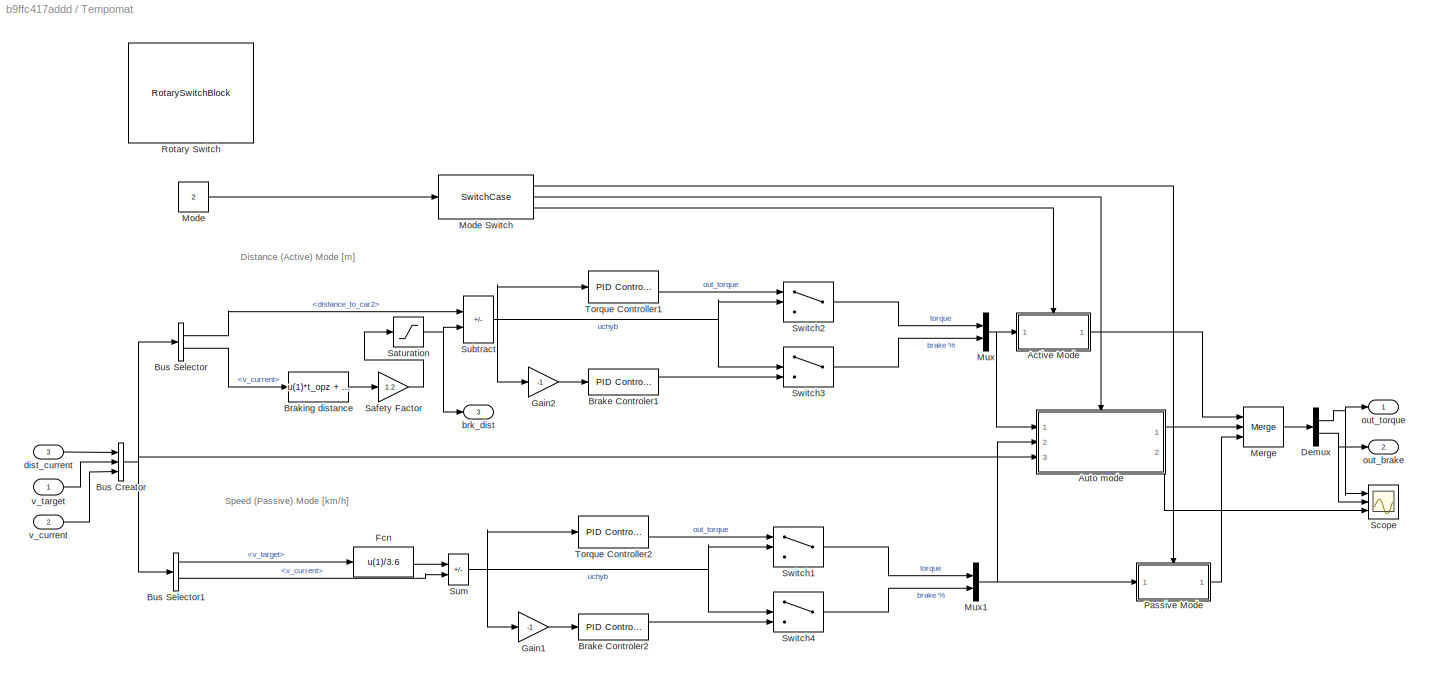
BLOCK [SubSystem] Tempomat
  PortSchema = {"entries":[{"content":{"sides":[{"content":{"connectorIds":["In1","In2","In3"]},"type":"ConnectorPlacement.EquallySpacedRectSide","uuid":"9f5fb6eb-04f0-4f65-9d6b-0e1071a7fa37"},{"content":{"connectorIds":["Out1","Out2"],"side":"RIGHT"},"type":"ConnectorPlacement.EquallySpacedRectSide","uuid":"bf6aa8fe-1017-489c-a599-db1657538e07"},{"content":{"connectorIds":["Out3"],"side":"TOP"},"type":"Connecto...<+267ch>
  Ports = [3, 3]
  RequestExecContextInheritance = off
BLOCK [SubSystem] Tempomat/Active Mode
  Ports = [1, 1, 0, 0, 0, 0, 0, 1]
  RequestExecContextInheritance = off
  TreatAsAtomicUnit = on
BLOCK [ActionPort] Tempomat/Active Mode/Action Port
  ActionPortLabel = case [ 0 ]:
BLOCK [Inport] Tempomat/Active Mode/In1
BLOCK [Outport] Tempomat/Active Mode/Out1
BLOCK [SubSystem] Tempomat/Auto mode
  Ports = [3, 2, 0, 0, 0, 0, 0, 1]
  RequestExecContextInheritance = off
  TreatAsAtomicUnit = on
BLOCK [ActionPort] Tempomat/Auto mode/Action Port
  ActionPortLabel = case [ 2 ]:
BLOCK [BusSelector] Tempomat/Auto mode/Bus Selector
  OutputSignals = distance_to_car2,v_target,v_current
  Ports = [1, 3]
BLOCK [If] Tempomat/Auto mode/If
  NumInputs = 3
  Ports = [3, 2]
BLOCK [SubSystem] Tempomat/Auto mode/If Action Subsystem
  Ports = [1, 2, 0, 0, 0, 0, 0, 1]
  RequestExecContextInheritance = off
  TreatAsAtomicUnit = on
BLOCK [ActionPort] Tempomat/Auto mode/If Action Subsystem/Action Port
  ActionPortLabel = if(u1 > 0)
BLOCK [Constant] Tempomat/Auto mode/If Action Subsystem/Constant
BLOCK [Outport] Tempomat/Auto mode/If Action Subsystem/Out1
BLOCK [Outport] Tempomat/Auto mode/If Action Subsystem/Out2
  Port = 2
BLOCK [Inport] Tempomat/Auto mode/If Action Subsystem/dist
BLOCK [SubSystem] Tempomat/Auto mode/If Action Subsystem1
  Ports = [1, 2, 0, 0, 0, 0, 0, 1]
  RequestExecContextInheritance = off
  TreatAsAtomicUnit = on
BLOCK [ActionPort] Tempomat/Auto mode/If Action Subsystem1/Action Port
  ActionPortLabel = else
BLOCK [Constant] Tempomat/Auto mode/If Action Subsystem1/Constant
  Value = 0
BLOCK [Outport] Tempomat/Auto mode/If Action Subsystem1/Out1
BLOCK [Outport] Tempomat/Auto mode/If Action Subsystem1/Out2
  Port = 2
BLOCK [Inport] Tempomat/Auto mode/If Action Subsystem1/velo
BLOCK [Merge] Tempomat/Auto mode/Merge
  Ports = [2, 1]
BLOCK [Merge] Tempomat/Auto mode/Merge1
  Ports = [2, 1]
BLOCK [Outport] Tempomat/Auto mode/Out1
BLOCK [Inport] Tempomat/Auto mode/data bus
  Port = 3
BLOCK [Inport] Tempomat/Auto mode/dist mode
BLOCK [Outport] Tempomat/Auto mode/mode
  Port = 2
BLOCK [Inport] Tempomat/Auto mode/speed mode
  Port = 2
BLOCK [Reference] Tempomat/Brake Controler1  REF=simulink/Continuous/PID Controller
  Ports = [1, 1]
  SourceBlock = simulink/Continuous/PID Controller
  SourceProductBaseCode = SL
  SourceType = PID 1dof
BLOCK [Reference] Tempomat/Brake Controler2  REF=simulink/Continuous/PID Controller
  Ports = [1, 1]
  SourceBlock = simulink/Continuous/PID Controller
  SourceProductBaseCode = SL
  SourceType = PID 1dof
BLOCK [Fcn] Tempomat/Braking distance
  Expr = u(1)*t_opz + (u(1)^2)/(2* 0.8 * brake_force/m)
BLOCK [BusCreator] Tempomat/Bus Creator
  DisplayOption = bar
  InheritFromInputs = on
  Inputs = 3
  Ports = [3, 1]
BLOCK [BusSelector] Tempomat/Bus Selector
  OutputSignals = distance_to_car2,v_current
  Ports = [1, 2]
BLOCK [BusSelector] Tempomat/Bus Selector1
  OutputSignals = v_target,v_current
  Ports = [1, 2]
BLOCK [Demux] Tempomat/Demux
  Outputs = 2
  Ports = [1, 2]
BLOCK [Fcn] Tempomat/Fcn
  Expr = u(1)/3.6
BLOCK [Gain] Tempomat/Gain1
  Gain = -1
BLOCK [Gain] Tempomat/Gain2
  Gain = -1
BLOCK [Merge] Tempomat/Merge
  Inputs = 3
  Ports = [3, 1]
BLOCK [Constant] Tempomat/Mode
  Value = 2
BLOCK [SwitchCase] Tempomat/Mode Switch
  CaseConditions = {1,2,0}
  Ports = [1, 3]
  ShowDefaultCase = off
BLOCK [Mux] Tempomat/Mux
  DisplayOption = bar
  Inputs = 2
  Ports = [2, 1]
BLOCK [Mux] Tempomat/Mux1
  DisplayOption = bar
  Inputs = 2
  Ports = [2, 1]
BLOCK [SubSystem] Tempomat/Passive Mode
  Ports = [1, 1, 0, 0, 0, 0, 0, 1]
  RequestExecContextInheritance = off
  TreatAsAtomicUnit = on
BLOCK [ActionPort] Tempomat/Passive Mode/Action Port
  ActionPortLabel = case [ 1 ]:
BLOCK [Inport] Tempomat/Passive Mode/In1
BLOCK [Outport] Tempomat/Passive Mode/Out1
BLOCK [RotarySwitchBlock] Tempomat/Rotary Switch
BLOCK [Gain] Tempomat/Safety Factor
  Gain = 1.2
  RndMeth = Ceiling
BLOCK [Saturate] Tempomat/Saturation
  LowerLimit = 10
  UpperLimit = 300
BLOCK [Scope] Tempomat/Scope
  Floating = off
  NumInputPorts = 3
  Ports = [3]
  ScopeSpecificationString = Simulink.scopes.TimeScopeBlockCfg('CurrentConfiguration', extmgr.ConfigurationSet(extmgr.Configuration('Core','General UI',true),extmgr.Configuration('Core','Source UI',true),extmgr.Configuration('Sources','WiredSimulink',true,'DataLoggingVariableName','ScopeData1'),extmgr.Configuration('Visuals','Time Domain',true,'SerializedDisplays',{struct('MinYLimReal','-18.5','MaxYLimReal','166.5','YLabelRea...<+2743ch>
BLOCK [Sum] Tempomat/Subtract
  IconShape = rectangular
  Inputs = +-
  Ports = [2, 1]
BLOCK [Sum] Tempomat/Sum
  IconShape = rectangular
  Inputs = +-
  Ports = [2, 1]
BLOCK [Switch] Tempomat/Switch1
  InputSameDT = off
  SaturateOnIntegerOverflow = off
BLOCK [Switch] Tempomat/Switch2
  InputSameDT = off
  SaturateOnIntegerOverflow = off
BLOCK [Switch] Tempomat/Switch3
  InputSameDT = off
  SaturateOnIntegerOverflow = off
BLOCK [Switch] Tempomat/Switch4
  InputSameDT = off
  SaturateOnIntegerOverflow = off
BLOCK [Reference] Tempomat/Torque Controller1  REF=simulink/Continuous/PID Controller
  Ports = [1, 1]
  SourceBlock = simulink/Continuous/PID Controller
  SourceProductBaseCode = SL
  SourceType = PID 1dof
BLOCK [Reference] Tempomat/Torque Controller2  REF=simulink/Continuous/PID Controller
  Ports = [1, 1]
  SourceBlock = simulink/Continuous/PID Controller
  SourceProductBaseCode = SL
  SourceType = PID 1dof
BLOCK [Outport] Tempomat/brk_dist
  Port = 3
BLOCK [Inport] Tempomat/dist_current
  Port = 3
BLOCK [Outport] Tempomat/out_brake
  Port = 2
BLOCK [Outport] Tempomat/out_torque
BLOCK [Inport] Tempomat/v_current
  Port = 2
BLOCK [Inport] Tempomat/v_target
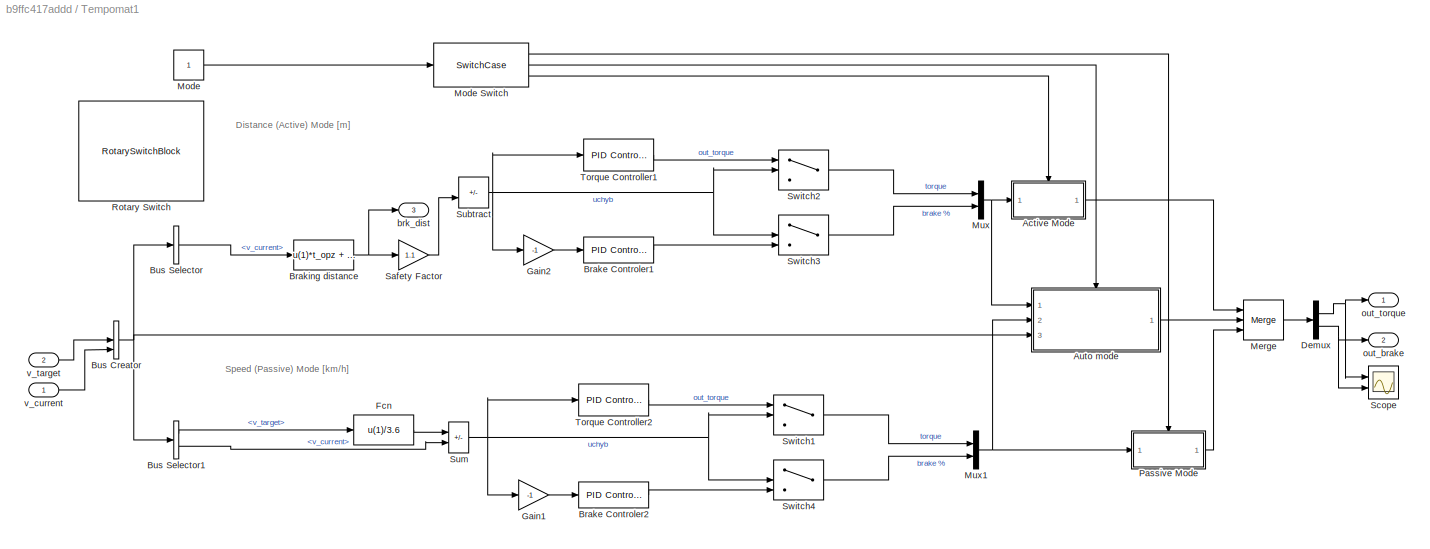
BLOCK [SubSystem] Tempomat1
  PortSchema = {"entries":[{"content":{"sides":[{"content":{"connectorIds":["In1","In2"]},"type":"ConnectorPlacement.EquallySpacedRectSide","uuid":"9f5fb6eb-04f0-4f65-9d6b-0e1071a7fa37"},{"content":{"connectorIds":["Out1","Out2"],"side":"RIGHT"},"type":"ConnectorPlacement.EquallySpacedRectSide","uuid":"bf6aa8fe-1017-489c-a599-db1657538e07"},{"content":{"connectorIds":["Out3"],"side":"TOP"},"type":"ConnectorPlace...<+261ch>
  Ports = [2, 3]
  RequestExecContextInheritance = off
BLOCK [SubSystem] Tempomat1/Active Mode
  Ports = [1, 1, 0, 0, 0, 0, 0, 1]
  RequestExecContextInheritance = off
  TreatAsAtomicUnit = on
BLOCK [ActionPort] Tempomat1/Active Mode/Action Port
  ActionPortLabel = case [ 0 ]:
BLOCK [Inport] Tempomat1/Active Mode/In1
BLOCK [Outport] Tempomat1/Active Mode/Out1
BLOCK [SubSystem] Tempomat1/Auto mode
  Ports = [3, 1, 0, 0, 0, 0, 0, 1]
  RequestExecContextInheritance = off
  TreatAsAtomicUnit = on
BLOCK [ActionPort] Tempomat1/Auto mode/Action Port
  ActionPortLabel = case [ 2 ]:
BLOCK [BusSelector] Tempomat1/Auto mode/Bus Selector
  OutputSignals = v_target,v_current
  Ports = [1, 2]
BLOCK [If] Tempomat1/Auto mode/If
  IfExpression = u1 < intercept_dist & u3 < u2
  NumInputs = 3
  Ports = [3, 2]
BLOCK [SubSystem] Tempomat1/Auto mode/If Action Subsystem
  Ports = [1, 1, 0, 0, 0, 0, 0, 1]
  RequestExecContextInheritance = off
  TreatAsAtomicUnit = on
BLOCK [ActionPort] Tempomat1/Auto mode/If Action Subsystem/Action Port
  ActionPortLabel = if(u1 < intercept_dist & u3 < u2)
BLOCK [Outport] Tempomat1/Auto mode/If Action Subsystem/Out1
BLOCK [Inport] Tempomat1/Auto mode/If Action Subsystem/dist
BLOCK [SubSystem] Tempomat1/Auto mode/If Action Subsystem1
  Ports = [1, 1, 0, 0, 0, 0, 0, 1]
  RequestExecContextInheritance = off
  TreatAsAtomicUnit = on
BLOCK [ActionPort] Tempomat1/Auto mode/If Action Subsystem1/Action Port
  ActionPortLabel = else
BLOCK [Outport] Tempomat1/Auto mode/If Action Subsystem1/Out1
BLOCK [Inport] Tempomat1/Auto mode/If Action Subsystem1/velo
BLOCK [Merge] Tempomat1/Auto mode/Merge
  Ports = [2, 1]
BLOCK [Outport] Tempomat1/Auto mode/Out1
BLOCK [Inport] Tempomat1/Auto mode/data bus
  Port = 3
BLOCK [Inport] Tempomat1/Auto mode/dist mode
BLOCK [Inport] Tempomat1/Auto mode/speed mode
  Port = 2
BLOCK [Reference] Tempomat1/Brake Controler1  REF=simulink/Continuous/PID Controller
  Ports = [1, 1]
  SourceBlock = simulink/Continuous/PID Controller
  SourceProductBaseCode = SL
  SourceType = PID 1dof
BLOCK [Reference] Tempomat1/Brake Controler2  REF=simulink/Continuous/PID Controller
  Ports = [1, 1]
  SourceBlock = simulink/Continuous/PID Controller
  SourceProductBaseCode = SL
  SourceType = PID 1dof
BLOCK [Fcn] Tempomat1/Braking distance
  Expr = u(1)*t_opz + (u(1)^2)/(2* 0.8 * brake_force/m)
BLOCK [BusCreator] Tempomat1/Bus Creator
  DisplayOption = bar
  InheritFromInputs = on
  Inputs = 3
  Ports = [3, 1]
BLOCK [BusSelector] Tempomat1/Bus Selector
  OutputSignals = v_current
  Ports = [1, 1]
BLOCK [BusSelector] Tempomat1/Bus Selector1
  OutputSignals = v_target,v_current
  Ports = [1, 2]
BLOCK [Demux] Tempomat1/Demux
  Outputs = 2
  Ports = [1, 2]
BLOCK [Fcn] Tempomat1/Fcn
  Expr = u(1)/3.6
BLOCK [Gain] Tempomat1/Gain1
  Gain = -1
BLOCK [Gain] Tempomat1/Gain2
  Gain = -1
BLOCK [Merge] Tempomat1/Merge
  Inputs = 3
  Ports = [3, 1]
BLOCK [Constant] Tempomat1/Mode
BLOCK [SwitchCase] Tempomat1/Mode Switch
  CaseConditions = {1,2,0}
  Ports = [1, 3]
  ShowDefaultCase = off
BLOCK [Mux] Tempomat1/Mux
  DisplayOption = bar
  Inputs = 2
  Ports = [2, 1]
BLOCK [Mux] Tempomat1/Mux1
  DisplayOption = bar
  Inputs = 2
  Ports = [2, 1]
BLOCK [SubSystem] Tempomat1/Passive Mode
  Ports = [1, 1, 0, 0, 0, 0, 0, 1]
  RequestExecContextInheritance = off
  TreatAsAtomicUnit = on
BLOCK [ActionPort] Tempomat1/Passive Mode/Action Port
  ActionPortLabel = case [ 1 ]:
BLOCK [Inport] Tempomat1/Passive Mode/In1
BLOCK [Outport] Tempomat1/Passive Mode/Out1
BLOCK [RotarySwitchBlock] Tempomat1/Rotary Switch
BLOCK [Gain] Tempomat1/Safety Factor
  Gain = 1.1
  RndMeth = Ceiling
BLOCK [Scope] Tempomat1/Scope
  Floating = off
  NumInputPorts = 2
  Ports = [2]
  ScopeSpecificationString = Simulink.scopes.TimeScopeBlockCfg('CurrentConfiguration', extmgr.ConfigurationSet(extmgr.Configuration('Core','General UI',true),extmgr.Configuration('Core','Source UI',true),extmgr.Configuration('Sources','WiredSimulink',true,'DataLoggingVariableName','ScopeData1'),extmgr.Configuration('Visuals','Time Domain',true,'SerializedDisplays',{struct('MinYLimReal','-18.5','MaxYLimReal','166.5','YLabelRea...<+2032ch>
BLOCK [Sum] Tempomat1/Subtract
  IconShape = rectangular
  Inputs = +-
  Ports = [2, 1]
BLOCK [Sum] Tempomat1/Sum
  IconShape = rectangular
  Inputs = +-
  Ports = [2, 1]
BLOCK [Switch] Tempomat1/Switch1
  InputSameDT = off
  SaturateOnIntegerOverflow = off
BLOCK [Switch] Tempomat1/Switch2
  InputSameDT = off
  SaturateOnIntegerOverflow = off
BLOCK [Switch] Tempomat1/Switch3
  InputSameDT = off
  SaturateOnIntegerOverflow = off
BLOCK [Switch] Tempomat1/Switch4
  InputSameDT = off
  SaturateOnIntegerOverflow = off
BLOCK [Reference] Tempomat1/Torque Controller1  REF=simulink/Continuous/PID Controller
  Ports = [1, 1]
  SourceBlock = simulink/Continuous/PID Controller
  SourceProductBaseCode = SL
  SourceType = PID 1dof
BLOCK [Reference] Tempomat1/Torque Controller2  REF=simulink/Continuous/PID Controller
  Ports = [1, 1]
  SourceBlock = simulink/Continuous/PID Controller
  SourceProductBaseCode = SL
  SourceType = PID 1dof
BLOCK [Outport] Tempomat1/brk_dist
  Port = 3
BLOCK [Outport] Tempomat1/out_brake
  Port = 2
BLOCK [Outport] Tempomat1/out_torque
BLOCK [Inport] Tempomat1/v_current
BLOCK [Inport] Tempomat1/v_target
  Port = 2
BLOCK [ToWorkspace] To Workspace
  FixptAsFi = on
  MaxDataPoints = inf
  Ports = [1]
  SampleTime = -1
  SaveFormat = Timeseries
  VariableName = car1
BLOCK [ToWorkspace] To Workspace1
  FixptAsFi = on
  MaxDataPoints = inf
  Ports = [1]
  SampleTime = -1
  SaveFormat = Timeseries
  VariableName = car2
BLOCK [ToWorkspace] To Workspace2
  FixptAsFi = on
  MaxDataPoints = inf
  Ports = [1]
  SampleTime = -1
  SaveFormat = Timeseries
  VariableName = intrusion
BLOCK [Sum] deltaS
  IconShape = rectangular
  Inputs = -+-
  NameLocation = top
  Ports = [3, 1]
BLOCK [Constant] gear
  Value = 4
BLOCK [Constant] gear1
  Value = 4
BLOCK [Constant] one
  IOType = siggen
BLOCK [Constant] zero
  IOType = siggen
  Value = 0
ANNOTATION (root): Car 1 (Following)
ANNOTATION (root): Car 2 (Leading)
ANNOTATION Tempomat: Distance (Active) Mode [m]
ANNOTATION Tempomat: Speed (Passive) Mode [km/h]
ANNOTATION Tempomat/Auto mode/If Action Subsystem: active
ANNOTATION Tempomat/Auto mode/If Action Subsystem1: active
ANNOTATION Tempomat1: Distance (Active) Mode [m]
ANNOTATION Tempomat1: Speed (Passive) Mode [km/h]
LINE Bus Creator1:1 -> To Workspace1:1
LINE Bus Creator:1 -> To Workspace:1
LINE Car Dynamics 1/Automated Gear Select/Constant:1 -> Car Dynamics 1/Automated Gear Select/If Action Subsystem3:1
LINE Car Dynamics 1/Automated Gear Select/If Action Subsystem/Add:1 -> Car Dynamics 1/Automated Gear Select/If Action Subsystem/Out1:1
LINE Car Dynamics 1/Automated Gear Select/If Action Subsystem/Constant:1 -> Car Dynamics 1/Automated Gear Select/If Action Subsystem/Add:2
LINE Car Dynamics 1/Automated Gear Select/If Action Subsystem/current gear:1 -> Car Dynamics 1/Automated Gear Select/If Action Subsystem/Add:1
LINE Car Dynamics 1/Automated Gear Select/If Action Subsystem1/Constant:1 -> Car Dynamics 1/Automated Gear Select/If Action Subsystem1/Subtract:2
LINE Car Dynamics 1/Automated Gear Select/If Action Subsystem1/Subtract:1 -> Car Dynamics 1/Automated Gear Select/If Action Subsystem1/Out1:1
LINE Car Dynamics 1/Automated Gear Select/If Action Subsystem1/current gear:1 -> Car Dynamics 1/Automated Gear Select/If Action Subsystem1/Subtract:1
LINE Car Dynamics 1/Automated Gear Select/If Action Subsystem1:1 -> Car Dynamics 1/Automated Gear Select/Merge:2
LINE Car Dynamics 1/Automated Gear Select/If Action Subsystem2/current gear:1 -> Car Dynamics 1/Automated Gear Select/If Action Subsystem2/Out1:1
LINE Car Dynamics 1/Automated Gear Select/If Action Subsystem2:1 -> Car Dynamics 1/Automated Gear Select/Merge:4
LINE Car Dynamics 1/Automated Gear Select/If Action Subsystem3/In1:1 -> Car Dynamics 1/Automated Gear Select/If Action Subsystem3/Out1:1
LINE Car Dynamics 1/Automated Gear Select/If Action Subsystem3:1 -> Car Dynamics 1/Automated Gear Select/Merge:3
LINE Car Dynamics 1/Automated Gear Select/If Action Subsystem:1 -> Car Dynamics 1/Automated Gear Select/Merge:1
LINE Car Dynamics 1/Automated Gear Select/If:1 -> Car Dynamics 1/Automated Gear Select/If Action Subsystem:ifaction
LINE Car Dynamics 1/Automated Gear Select/If:2 -> Car Dynamics 1/Automated Gear Select/If Action Subsystem1:ifaction
LINE Car Dynamics 1/Automated Gear Select/If:3 -> Car Dynamics 1/Automated Gear Select/If Action Subsystem3:ifaction
LINE Car Dynamics 1/Automated Gear Select/If:4 -> Car Dynamics 1/Automated Gear Select/If Action Subsystem2:ifaction
LINE Car Dynamics 1/Automated Gear Select/Manual Switch:1 -> Car Dynamics 1/Automated Gear Select/out_gear:1
NET Car Dynamics 1/Automated Gear Select/Memory3:1 -> Car Dynamics 1/Automated Gear Select/If Action Subsystem1:1, Car Dynamics 1/Automated Gear Select/If Action Subsystem2:1, Car Dynamics 1/Automated Gear Select/If Action Subsystem:1, Car Dynamics 1/Automated Gear Select/If:2, Car Dynamics 1/Automated Gear Select/Shifter1:2
LINE Car Dynamics 1/Automated Gear Select/Merge:1 -> Car Dynamics 1/Automated Gear Select/Manual Switch:2
LINE Car Dynamics 1/Automated Gear Select/Shifter1:1 -> Car Dynamics 1/Automated Gear Select/Manual Switch:1
LINE Car Dynamics 1/Automated Gear Select/current gear:1 -> Car Dynamics 1/Automated Gear Select/Memory3:1
NET Car Dynamics 1/Automated Gear Select/n:1 -> Car Dynamics 1/Automated Gear Select/If:1, Car Dynamics 1/Automated Gear Select/Shifter1:1
LINE Car Dynamics 1/Automated Gear Select:1 -> Car Dynamics 1/Gear Select: Constant//Automatic:2
LINE Car Dynamics 1/Bus Creator:1 -> Car Dynamics 1/To Workspace:1
NET Car Dynamics 1/Gear Select: Constant//Automatic:1 -> Car Dynamics 1/Bus Creator:4, Car Dynamics 1/Gearbox:2, Car Dynamics 1/Scope1:4
LINE Car Dynamics 1/Gearbox/Constant1:1 -> Car Dynamics 1/Gearbox/Switch Case Action Subsystem1:1
LINE Car Dynamics 1/Gearbox/Constant2:1 -> Car Dynamics 1/Gearbox/Switch Case Action Subsystem2:1
LINE Car Dynamics 1/Gearbox/Constant3:1 -> Car Dynamics 1/Gearbox/Switch Case Action Subsystem3:1
LINE Car Dynamics 1/Gearbox/Constant4:1 -> Car Dynamics 1/Gearbox/Switch Case Action Subsystem4:1
LINE Car Dynamics 1/Gearbox/Constant:1 -> Car Dynamics 1/Gearbox/Switch Case Action Subsystem:1
LINE Car Dynamics 1/Gearbox/Engine Torque:1 -> Car Dynamics 1/Gearbox/Product:1
LINE Car Dynamics 1/Gearbox/Gain5:1 -> Car Dynamics 1/Gearbox/Wheel Torque:1
NET Car Dynamics 1/Gearbox/Gear:1 -> Car Dynamics 1/Gearbox/Switch Case:1, Car Dynamics 1/Gearbox/gear_out:1
NET Car Dynamics 1/Gearbox/Merge:1 -> Car Dynamics 1/Gearbox/Product:2, Car Dynamics 1/Gearbox/ib:1
LINE Car Dynamics 1/Gearbox/Product:1 -> Car Dynamics 1/Gearbox/Gain5:1
LINE Car Dynamics 1/Gearbox/Switch Case Action Subsystem/Engine Torque:1 -> Car Dynamics 1/Gearbox/Switch Case Action Subsystem/Out1:1
LINE Car Dynamics 1/Gearbox/Switch Case Action Subsystem1/Engine Torque:1 -> Car Dynamics 1/Gearbox/Switch Case Action Subsystem1/Out1:1
LINE Car Dynamics 1/Gearbox/Switch Case Action Subsystem1:1 -> Car Dynamics 1/Gearbox/Merge:2
LINE Car Dynamics 1/Gearbox/Switch Case Action Subsystem2/Engine Torque:1 -> Car Dynamics 1/Gearbox/Switch Case Action Subsystem2/Out1:1
LINE Car Dynamics 1/Gearbox/Switch Case Action Subsystem2:1 -> Car Dynamics 1/Gearbox/Merge:3
LINE Car Dynamics 1/Gearbox/Switch Case Action Subsystem3/Engine Torque:1 -> Car Dynamics 1/Gearbox/Switch Case Action Subsystem3/Out1:1
LINE Car Dynamics 1/Gearbox/Switch Case Action Subsystem3:1 -> Car Dynamics 1/Gearbox/Merge:4
LINE Car Dynamics 1/Gearbox/Switch Case Action Subsystem4/Engine Torque:1 -> Car Dynamics 1/Gearbox/Switch Case Action Subsystem4/Out1:1
LINE Car Dynamics 1/Gearbox/Switch Case Action Subsystem4:1 -> Car Dynamics 1/Gearbox/Merge:5
LINE Car Dynamics 1/Gearbox/Switch Case Action Subsystem:1 -> Car Dynamics 1/Gearbox/Merge:1
LINE Car Dynamics 1/Gearbox/Switch Case:1 -> Car Dynamics 1/Gearbox/Switch Case Action Subsystem:ifaction
LINE Car Dynamics 1/Gearbox/Switch Case:2 -> Car Dynamics 1/Gearbox/Switch Case Action Subsystem1:ifaction
LINE Car Dynamics 1/Gearbox/Switch Case:3 -> Car Dynamics 1/Gearbox/Switch Case Action Subsystem2:ifaction
LINE Car Dynamics 1/Gearbox/Switch Case:4 -> Car Dynamics 1/Gearbox/Switch Case Action Subsystem3:ifaction
LINE Car Dynamics 1/Gearbox/Switch Case:5 -> Car Dynamics 1/Gearbox/Switch Case Action Subsystem4:ifaction
LINE Car Dynamics 1/Gearbox:1 -> Car Dynamics 1/Motion Equations1:1
LINE Car Dynamics 1/Gearbox:2 -> Car Dynamics 1/rpm calculation:1
LINE Car Dynamics 1/Gearbox:3 -> Car Dynamics 1/Automated Gear Select:1
LINE Car Dynamics 1/Motion Equations1/Brake %:1 -> Car Dynamics 1/Motion Equations1/Product:1
LINE Car Dynamics 1/Motion Equations1/Brake Force:1 -> Car Dynamics 1/Motion Equations1/Product:2
LINE Car Dynamics 1/Motion Equations1/Gain1:1 -> Car Dynamics 1/Motion Equations1/Sum:4
LINE Car Dynamics 1/Motion Equations1/Gain3:1 -> Car Dynamics 1/Motion Equations1/Sum:1
NET Car Dynamics 1/Motion Equations1/Gain:1 -> Car Dynamics 1/Motion Equations1/Integrator:1, Car Dynamics 1/Motion Equations1/a:1
LINE Car Dynamics 1/Motion Equations1/Integrator1:1 -> Car Dynamics 1/Motion Equations1/s:1
NET Car Dynamics 1/Motion Equations1/Integrator:1 -> Car Dynamics 1/Motion Equations1/Integrator1:1, Car Dynamics 1/Motion Equations1/Math Function:1, Car Dynamics 1/Motion Equations1/v:1
LINE Car Dynamics 1/Motion Equations1/Math Function:1 -> Car Dynamics 1/Motion Equations1/Gain1:1
LINE Car Dynamics 1/Motion Equations1/Opory toczenia:1 -> Car Dynamics 1/Motion Equations1/Sum:2
LINE Car Dynamics 1/Motion Equations1/Product:1 -> Car Dynamics 1/Motion Equations1/Sum:3
LINE Car Dynamics 1/Motion Equations1/Sum:1 -> Car Dynamics 1/Motion Equations1/Gain:1
LINE Car Dynamics 1/Motion Equations1/Torque:1 -> Car Dynamics 1/Motion Equations1/Gain3:1
NET Car Dynamics 1/Motion Equations1:1 -> Car Dynamics 1/Scope:1, Car Dynamics 1/a:1
NET Car Dynamics 1/Motion Equations1:2 -> Car Dynamics 1/Scope1:5, Car Dynamics 1/Scope:2, Car Dynamics 1/rpm calculation:2, Car Dynamics 1/v:1
NET Car Dynamics 1/Motion Equations1:3 -> Car Dynamics 1/Scope1:7, Car Dynamics 1/Scope:3, Car Dynamics 1/s:1
LINE Car Dynamics 1/Torque Limiter/Manual Switch:1 -> Car Dynamics 1/Torque Limiter/Saturation Dynamic:1
LINE Car Dynamics 1/Torque Limiter/Max Torque Calc/Max torque:1 -> Car Dynamics 1/Torque Limiter/Max Torque Calc/Saturation:1
LINE Car Dynamics 1/Torque Limiter/Max Torque Calc/Saturation:1 -> Car Dynamics 1/Torque Limiter/Max Torque Calc/out torque:1
LINE Car Dynamics 1/Torque Limiter/Max Torque Calc/n:1 -> Car Dynamics 1/Torque Limiter/Max Torque Calc/Max torque:1
LINE Car Dynamics 1/Torque Limiter/Max Torque Calc:1 -> Car Dynamics 1/Torque Limiter/Manual Switch:2
LINE Car Dynamics 1/Torque Limiter/Saturation Dynamic:1 -> Car Dynamics 1/Torque Limiter/torque_out:1
LINE Car Dynamics 1/Torque Limiter/max torque calc:1 -> Car Dynamics 1/Torque Limiter/Manual Switch:1
NET Car Dynamics 1/Torque Limiter/n:1 -> Car Dynamics 1/Torque Limiter/Max Torque Calc:1, Car Dynamics 1/Torque Limiter/max torque calc:1
LINE Car Dynamics 1/Torque Limiter/torque_in:1 -> Car Dynamics 1/Torque Limiter/Saturation Dynamic:2
LINE Car Dynamics 1/Torque Limiter:1 -> Car Dynamics 1/Torque limiter bypass//on:2
NET Car Dynamics 1/Torque limiter bypass//on:1 -> Car Dynamics 1/Bus Creator:2, Car Dynamics 1/Gearbox:1, Car Dynamics 1/Scope1:2
LINE Car Dynamics 1/rpm calculation/Gain4:1 -> Car Dynamics 1/rpm calculation/Memory2:1
LINE Car Dynamics 1/rpm calculation/Memory2:1 -> Car Dynamics 1/rpm calculation/n:1
LINE Car Dynamics 1/rpm calculation/Product1:1 -> Car Dynamics 1/rpm calculation/Gain4:1
LINE Car Dynamics 1/rpm calculation/ib:1 -> Car Dynamics 1/rpm calculation/Product1:1
LINE Car Dynamics 1/rpm calculation/v:1 -> Car Dynamics 1/rpm calculation/Product1:2
NET Car Dynamics 1/rpm calculation:1 -> Car Dynamics 1/Automated Gear Select:2, Car Dynamics 1/Bus Creator:3, Car Dynamics 1/Scope1:3, Car Dynamics 1/Torque Limiter:2
NET Car Dynamics 1/set brake:1 -> Car Dynamics 1/Bus Creator:5, Car Dynamics 1/Motion Equations1:2, Car Dynamics 1/Scope1:6
LINE Car Dynamics 1/set gear:1 -> Car Dynamics 1/Gear Select: Constant//Automatic:1
NET Car Dynamics 1/set torque:1 -> Car Dynamics 1/Bus Creator:1, Car Dynamics 1/Scope1:1, Car Dynamics 1/Torque Limiter:1, Car Dynamics 1/Torque limiter bypass//on:1
LINE Car Dynamics 1:1 -> Bus Creator:1
NET Car Dynamics 1:2 -> Bus Creator:2, Tempomat:2
NET Car Dynamics 1:3 -> Bus Creator:3, Scope2:2, Scope:1, deltaS:1
LINE Car Dynamics 2/Automated Gear Select/Constant:1 -> Car Dynamics 2/Automated Gear Select/If Action Subsystem3:1
LINE Car Dynamics 2/Automated Gear Select/If Action Subsystem/Add:1 -> Car Dynamics 2/Automated Gear Select/If Action Subsystem/Out1:1
LINE Car Dynamics 2/Automated Gear Select/If Action Subsystem/Constant:1 -> Car Dynamics 2/Automated Gear Select/If Action Subsystem/Add:2
LINE Car Dynamics 2/Automated Gear Select/If Action Subsystem/current gear:1 -> Car Dynamics 2/Automated Gear Select/If Action Subsystem/Add:1
LINE Car Dynamics 2/Automated Gear Select/If Action Subsystem1/Constant:1 -> Car Dynamics 2/Automated Gear Select/If Action Subsystem1/Subtract:2
LINE Car Dynamics 2/Automated Gear Select/If Action Subsystem1/Subtract:1 -> Car Dynamics 2/Automated Gear Select/If Action Subsystem1/Out1:1
LINE Car Dynamics 2/Automated Gear Select/If Action Subsystem1/current gear:1 -> Car Dynamics 2/Automated Gear Select/If Action Subsystem1/Subtract:1
LINE Car Dynamics 2/Automated Gear Select/If Action Subsystem1:1 -> Car Dynamics 2/Automated Gear Select/Merge:2
LINE Car Dynamics 2/Automated Gear Select/If Action Subsystem2/current gear:1 -> Car Dynamics 2/Automated Gear Select/If Action Subsystem2/Out1:1
LINE Car Dynamics 2/Automated Gear Select/If Action Subsystem2:1 -> Car Dynamics 2/Automated Gear Select/Merge:4
LINE Car Dynamics 2/Automated Gear Select/If Action Subsystem3/In1:1 -> Car Dynamics 2/Automated Gear Select/If Action Subsystem3/Out1:1
LINE Car Dynamics 2/Automated Gear Select/If Action Subsystem3:1 -> Car Dynamics 2/Automated Gear Select/Merge:3
LINE Car Dynamics 2/Automated Gear Select/If Action Subsystem:1 -> Car Dynamics 2/Automated Gear Select/Merge:1
LINE Car Dynamics 2/Automated Gear Select/If:1 -> Car Dynamics 2/Automated Gear Select/If Action Subsystem:ifaction
LINE Car Dynamics 2/Automated Gear Select/If:2 -> Car Dynamics 2/Automated Gear Select/If Action Subsystem1:ifaction
LINE Car Dynamics 2/Automated Gear Select/If:3 -> Car Dynamics 2/Automated Gear Select/If Action Subsystem3:ifaction
LINE Car Dynamics 2/Automated Gear Select/If:4 -> Car Dynamics 2/Automated Gear Select/If Action Subsystem2:ifaction
LINE Car Dynamics 2/Automated Gear Select/Manual Switch:1 -> Car Dynamics 2/Automated Gear Select/out_gear:1
NET Car Dynamics 2/Automated Gear Select/Memory3:1 -> Car Dynamics 2/Automated Gear Select/If Action Subsystem1:1, Car Dynamics 2/Automated Gear Select/If Action Subsystem2:1, Car Dynamics 2/Automated Gear Select/If Action Subsystem:1, Car Dynamics 2/Automated Gear Select/If:2, Car Dynamics 2/Automated Gear Select/Shifter1:2
LINE Car Dynamics 2/Automated Gear Select/Merge:1 -> Car Dynamics 2/Automated Gear Select/Manual Switch:2
LINE Car Dynamics 2/Automated Gear Select/Shifter1:1 -> Car Dynamics 2/Automated Gear Select/Manual Switch:1
LINE Car Dynamics 2/Automated Gear Select/current gear:1 -> Car Dynamics 2/Automated Gear Select/Memory3:1
NET Car Dynamics 2/Automated Gear Select/n:1 -> Car Dynamics 2/Automated Gear Select/If:1, Car Dynamics 2/Automated Gear Select/Shifter1:1
LINE Car Dynamics 2/Automated Gear Select:1 -> Car Dynamics 2/Gear Select: Constant//Automatic:2
LINE Car Dynamics 2/Bus Creator:1 -> Car Dynamics 2/To Workspace:1
NET Car Dynamics 2/Gear Select: Constant//Automatic:1 -> Car Dynamics 2/Bus Creator:4, Car Dynamics 2/Gearbox:2, Car Dynamics 2/Scope1:4
LINE Car Dynamics 2/Gearbox/Constant1:1 -> Car Dynamics 2/Gearbox/Switch Case Action Subsystem1:1
LINE Car Dynamics 2/Gearbox/Constant2:1 -> Car Dynamics 2/Gearbox/Switch Case Action Subsystem2:1
LINE Car Dynamics 2/Gearbox/Constant3:1 -> Car Dynamics 2/Gearbox/Switch Case Action Subsystem3:1
LINE Car Dynamics 2/Gearbox/Constant4:1 -> Car Dynamics 2/Gearbox/Switch Case Action Subsystem4:1
LINE Car Dynamics 2/Gearbox/Constant:1 -> Car Dynamics 2/Gearbox/Switch Case Action Subsystem:1
LINE Car Dynamics 2/Gearbox/Engine Torque:1 -> Car Dynamics 2/Gearbox/Product:1
LINE Car Dynamics 2/Gearbox/Gain5:1 -> Car Dynamics 2/Gearbox/Wheel Torque:1
NET Car Dynamics 2/Gearbox/Gear:1 -> Car Dynamics 2/Gearbox/Switch Case:1, Car Dynamics 2/Gearbox/gear_out:1
NET Car Dynamics 2/Gearbox/Merge:1 -> Car Dynamics 2/Gearbox/Product:2, Car Dynamics 2/Gearbox/ib:1
LINE Car Dynamics 2/Gearbox/Product:1 -> Car Dynamics 2/Gearbox/Gain5:1
LINE Car Dynamics 2/Gearbox/Switch Case Action Subsystem/Engine Torque:1 -> Car Dynamics 2/Gearbox/Switch Case Action Subsystem/Out1:1
LINE Car Dynamics 2/Gearbox/Switch Case Action Subsystem1/Engine Torque:1 -> Car Dynamics 2/Gearbox/Switch Case Action Subsystem1/Out1:1
LINE Car Dynamics 2/Gearbox/Switch Case Action Subsystem1:1 -> Car Dynamics 2/Gearbox/Merge:2
LINE Car Dynamics 2/Gearbox/Switch Case Action Subsystem2/Engine Torque:1 -> Car Dynamics 2/Gearbox/Switch Case Action Subsystem2/Out1:1
LINE Car Dynamics 2/Gearbox/Switch Case Action Subsystem2:1 -> Car Dynamics 2/Gearbox/Merge:3
LINE Car Dynamics 2/Gearbox/Switch Case Action Subsystem3/Engine Torque:1 -> Car Dynamics 2/Gearbox/Switch Case Action Subsystem3/Out1:1
LINE Car Dynamics 2/Gearbox/Switch Case Action Subsystem3:1 -> Car Dynamics 2/Gearbox/Merge:4
LINE Car Dynamics 2/Gearbox/Switch Case Action Subsystem4/Engine Torque:1 -> Car Dynamics 2/Gearbox/Switch Case Action Subsystem4/Out1:1
LINE Car Dynamics 2/Gearbox/Switch Case Action Subsystem4:1 -> Car Dynamics 2/Gearbox/Merge:5
LINE Car Dynamics 2/Gearbox/Switch Case Action Subsystem:1 -> Car Dynamics 2/Gearbox/Merge:1
LINE Car Dynamics 2/Gearbox/Switch Case:1 -> Car Dynamics 2/Gearbox/Switch Case Action Subsystem:ifaction
LINE Car Dynamics 2/Gearbox/Switch Case:2 -> Car Dynamics 2/Gearbox/Switch Case Action Subsystem1:ifaction
LINE Car Dynamics 2/Gearbox/Switch Case:3 -> Car Dynamics 2/Gearbox/Switch Case Action Subsystem2:ifaction
LINE Car Dynamics 2/Gearbox/Switch Case:4 -> Car Dynamics 2/Gearbox/Switch Case Action Subsystem3:ifaction
LINE Car Dynamics 2/Gearbox/Switch Case:5 -> Car Dynamics 2/Gearbox/Switch Case Action Subsystem4:ifaction
LINE Car Dynamics 2/Gearbox:1 -> Car Dynamics 2/Motion Equations1:1
LINE Car Dynamics 2/Gearbox:2 -> Car Dynamics 2/rpm calculation:1
LINE Car Dynamics 2/Gearbox:3 -> Car Dynamics 2/Automated Gear Select:1
LINE Car Dynamics 2/Motion Equations1/Brake %:1 -> Car Dynamics 2/Motion Equations1/Product:1
LINE Car Dynamics 2/Motion Equations1/Brake Force:1 -> Car Dynamics 2/Motion Equations1/Product:2
LINE Car Dynamics 2/Motion Equations1/Gain1:1 -> Car Dynamics 2/Motion Equations1/Sum:4
LINE Car Dynamics 2/Motion Equations1/Gain3:1 -> Car Dynamics 2/Motion Equations1/Sum:1
NET Car Dynamics 2/Motion Equations1/Gain:1 -> Car Dynamics 2/Motion Equations1/Integrator:1, Car Dynamics 2/Motion Equations1/a:1
LINE Car Dynamics 2/Motion Equations1/Integrator1:1 -> Car Dynamics 2/Motion Equations1/s:1
NET Car Dynamics 2/Motion Equations1/Integrator:1 -> Car Dynamics 2/Motion Equations1/Integrator1:1, Car Dynamics 2/Motion Equations1/Math Function:1, Car Dynamics 2/Motion Equations1/v:1
LINE Car Dynamics 2/Motion Equations1/Math Function:1 -> Car Dynamics 2/Motion Equations1/Gain1:1
LINE Car Dynamics 2/Motion Equations1/Opory toczenia:1 -> Car Dynamics 2/Motion Equations1/Sum:2
LINE Car Dynamics 2/Motion Equations1/Product:1 -> Car Dynamics 2/Motion Equations1/Sum:3
LINE Car Dynamics 2/Motion Equations1/Sum:1 -> Car Dynamics 2/Motion Equations1/Gain:1
LINE Car Dynamics 2/Motion Equations1/Torque:1 -> Car Dynamics 2/Motion Equations1/Gain3:1
NET Car Dynamics 2/Motion Equations1:1 -> Car Dynamics 2/Scope:1, Car Dynamics 2/a:1
NET Car Dynamics 2/Motion Equations1:2 -> Car Dynamics 2/Scope1:5, Car Dynamics 2/Scope:2, Car Dynamics 2/rpm calculation:2, Car Dynamics 2/v:1
NET Car Dynamics 2/Motion Equations1:3 -> Car Dynamics 2/Scope1:7, Car Dynamics 2/Scope:3, Car Dynamics 2/s:1
LINE Car Dynamics 2/Torque Limiter/If Action Subsystem/torque_in:1 -> Car Dynamics 2/Torque Limiter/If Action Subsystem/Out1:1
LINE Car Dynamics 2/Torque Limiter/If Action Subsystem1/In1:1 -> Car Dynamics 2/Torque Limiter/If Action Subsystem1/Out1:1
LINE Car Dynamics 2/Torque Limiter/If Action Subsystem1:1 -> Car Dynamics 2/Torque Limiter/Merge:2
LINE Car Dynamics 2/Torque Limiter/If Action Subsystem:1 -> Car Dynamics 2/Torque Limiter/Merge:1
LINE Car Dynamics 2/Torque Limiter/If:1 -> Car Dynamics 2/Torque Limiter/If Action Subsystem:ifaction
LINE Car Dynamics 2/Torque Limiter/If:2 -> Car Dynamics 2/Torque Limiter/If Action Subsystem1:ifaction
NET Car Dynamics 2/Torque Limiter/Manual Switch:1 -> Car Dynamics 2/Torque Limiter/If Action Subsystem1:1, Car Dynamics 2/Torque Limiter/If:2
LINE Car Dynamics 2/Torque Limiter/Max Torque Calc/If Action Subsystem2/In1:1 -> Car Dynamics 2/Torque Limiter/Max Torque Calc/If Action Subsystem2/Out1:1
LINE Car Dynamics 2/Torque Limiter/Max Torque Calc/If Action Subsystem2:1 -> Car Dynamics 2/Torque Limiter/Max Torque Calc/Merge1:1
LINE Car Dynamics 2/Torque Limiter/Max Torque Calc/If Action Subsystem3/In1:1 -> Car Dynamics 2/Torque Limiter/Max Torque Calc/If Action Subsystem3/Out1:1
LINE Car Dynamics 2/Torque Limiter/Max Torque Calc/If Action Subsystem3:1 -> Car Dynamics 2/Torque Limiter/Max Torque Calc/Merge1:2
LINE Car Dynamics 2/Torque Limiter/Max Torque Calc/If1:1 -> Car Dynamics 2/Torque Limiter/Max Torque Calc/If Action Subsystem2:ifaction
LINE Car Dynamics 2/Torque Limiter/Max Torque Calc/If1:2 -> Car Dynamics 2/Torque Limiter/Max Torque Calc/If Action Subsystem3:ifaction
NET Car Dynamics 2/Torque Limiter/Max Torque Calc/Max torque:1 -> Car Dynamics 2/Torque Limiter/Max Torque Calc/If Action Subsystem3:1, Car Dynamics 2/Torque Limiter/Max Torque Calc/If1:1
LINE Car Dynamics 2/Torque Limiter/Max Torque Calc/Merge1:1 -> Car Dynamics 2/Torque Limiter/Max Torque Calc/out torque:1
LINE Car Dynamics 2/Torque Limiter/Max Torque Calc/min torque:1 -> Car Dynamics 2/Torque Limiter/Max Torque Calc/If Action Subsystem2:1
LINE Car Dynamics 2/Torque Limiter/Max Torque Calc/n:1 -> Car Dynamics 2/Torque Limiter/Max Torque Calc/Max torque:1
LINE Car Dynamics 2/Torque Limiter/Max Torque Calc:1 -> Car Dynamics 2/Torque Limiter/Manual Switch:2
LINE Car Dynamics 2/Torque Limiter/Merge:1 -> Car Dynamics 2/Torque Limiter/torque_out:1
LINE Car Dynamics 2/Torque Limiter/max torque calc:1 -> Car Dynamics 2/Torque Limiter/Manual Switch:1
NET Car Dynamics 2/Torque Limiter/n:1 -> Car Dynamics 2/Torque Limiter/Max Torque Calc:1, Car Dynamics 2/Torque Limiter/max torque calc:1
NET Car Dynamics 2/Torque Limiter/torque_in:1 -> Car Dynamics 2/Torque Limiter/If Action Subsystem:1, Car Dynamics 2/Torque Limiter/If:1
LINE Car Dynamics 2/Torque Limiter:1 -> Car Dynamics 2/Torque limiter bypass//on:2
NET Car Dynamics 2/Torque limiter bypass//on:1 -> Car Dynamics 2/Bus Creator:2, Car Dynamics 2/Gearbox:1, Car Dynamics 2/Scope1:2
LINE Car Dynamics 2/rpm calculation/Gain4:1 -> Car Dynamics 2/rpm calculation/Memory2:1
LINE Car Dynamics 2/rpm calculation/Memory2:1 -> Car Dynamics 2/rpm calculation/n:1
LINE Car Dynamics 2/rpm calculation/Product1:1 -> Car Dynamics 2/rpm calculation/Gain4:1
LINE Car Dynamics 2/rpm calculation/ib:1 -> Car Dynamics 2/rpm calculation/Product1:1
LINE Car Dynamics 2/rpm calculation/v:1 -> Car Dynamics 2/rpm calculation/Product1:2
NET Car Dynamics 2/rpm calculation:1 -> Car Dynamics 2/Automated Gear Select:2, Car Dynamics 2/Bus Creator:3, Car Dynamics 2/Scope1:3, Car Dynamics 2/Torque Limiter:2
NET Car Dynamics 2/set brake:1 -> Car Dynamics 2/Bus Creator:5, Car Dynamics 2/Motion Equations1:2, Car Dynamics 2/Scope1:6
LINE Car Dynamics 2/set gear:1 -> Car Dynamics 2/Gear Select: Constant//Automatic:1
NET Car Dynamics 2/set torque:1 -> Car Dynamics 2/Bus Creator:1, Car Dynamics 2/Scope1:1, Car Dynamics 2/Torque Limiter:1, Car Dynamics 2/Torque limiter bypass//on:1
LINE Car Dynamics 2:1 -> Bus Creator1:1
NET Car Dynamics 2:2 -> Bus Creator1:2, Tempomat1:1
NET Car Dynamics 2:3 -> Bus Creator1:3, Scope2:1, Scope:2, deltaS:2
LINE Constant:1 -> Tempomat:1
NET Signal Editor:1 -> Bus Creator1:6, Scope1:1, Tempomat1:2
NET Signal Editor:2 -> To Workspace2:1, deltaS:3
LINE Tempomat/Active Mode/In1:1 -> Tempomat/Active Mode/Out1:1
LINE Tempomat/Active Mode:1 -> Tempomat/Merge:1
LINE Tempomat/Auto mode/Bus Selector:1 -> Tempomat/Auto mode/If:1
LINE Tempomat/Auto mode/Bus Selector:2 -> Tempomat/Auto mode/If:2
LINE Tempomat/Auto mode/Bus Selector:3 -> Tempomat/Auto mode/If:3
LINE Tempomat/Auto mode/If Action Subsystem/Constant:1 -> Tempomat/Auto mode/If Action Subsystem/Out2:1
LINE Tempomat/Auto mode/If Action Subsystem/dist:1 -> Tempomat/Auto mode/If Action Subsystem/Out1:1
LINE Tempomat/Auto mode/If Action Subsystem1/Constant:1 -> Tempomat/Auto mode/If Action Subsystem1/Out2:1
LINE Tempomat/Auto mode/If Action Subsystem1/velo:1 -> Tempomat/Auto mode/If Action Subsystem1/Out1:1
LINE Tempomat/Auto mode/If Action Subsystem1:1 -> Tempomat/Auto mode/Merge:2
LINE Tempomat/Auto mode/If Action Subsystem1:2 -> Tempomat/Auto mode/Merge1:2
LINE Tempomat/Auto mode/If Action Subsystem:1 -> Tempomat/Auto mode/Merge:1
LINE Tempomat/Auto mode/If Action Subsystem:2 -> Tempomat/Auto mode/Merge1:1
LINE Tempomat/Auto mode/If:1 -> Tempomat/Auto mode/If Action Subsystem:ifaction
LINE Tempomat/Auto mode/If:2 -> Tempomat/Auto mode/If Action Subsystem1:ifaction
LINE Tempomat/Auto mode/Merge1:1 -> Tempomat/Auto mode/mode:1
LINE Tempomat/Auto mode/Merge:1 -> Tempomat/Auto mode/Out1:1
LINE Tempomat/Auto mode/data bus:1 -> Tempomat/Auto mode/Bus Selector:1
LINE Tempomat/Auto mode/dist mode:1 -> Tempomat/Auto mode/If Action Subsystem:1
LINE Tempomat/Auto mode/speed mode:1 -> Tempomat/Auto mode/If Action Subsystem1:1
LINE Tempomat/Auto mode:1 -> Tempomat/Merge:2
LINE Tempomat/Auto mode:2 -> Tempomat/Scope:3
LINE Tempomat/Brake Controler1:1 -> Tempomat/Switch3:3
LINE Tempomat/Brake Controler2:1 -> Tempomat/Switch4:3
LINE Tempomat/Braking distance:1 -> Tempomat/Safety Factor:1
NET Tempomat/Bus Creator:1 -> Tempomat/Auto mode:3, Tempomat/Bus Selector1:1, Tempomat/Bus Selector:1
LINE Tempomat/Bus Selector1:1 -> Tempomat/Fcn:1
LINE Tempomat/Bus Selector1:2 -> Tempomat/Sum:2
LINE Tempomat/Bus Selector:1 -> Tempomat/Subtract:1
LINE Tempomat/Bus Selector:2 -> Tempomat/Braking distance:1
NET Tempomat/Demux:1 -> Tempomat/Scope:1, Tempomat/out_torque:1
NET Tempomat/Demux:2 -> Tempomat/Scope:2, Tempomat/out_brake:1
LINE Tempomat/Fcn:1 -> Tempomat/Sum:1
LINE Tempomat/Gain1:1 -> Tempomat/Brake Controler2:1
LINE Tempomat/Gain2:1 -> Tempomat/Brake Controler1:1
LINE Tempomat/Merge:1 -> Tempomat/Demux:1
LINE Tempomat/Mode Switch:1 -> Tempomat/Passive Mode:ifaction
LINE Tempomat/Mode Switch:2 -> Tempomat/Auto mode:ifaction
LINE Tempomat/Mode Switch:3 -> Tempomat/Active Mode:ifaction
LINE Tempomat/Mode:1 -> Tempomat/Mode Switch:1
NET Tempomat/Mux1:1 -> Tempomat/Auto mode:2, Tempomat/Passive Mode:1
NET Tempomat/Mux:1 -> Tempomat/Active Mode:1, Tempomat/Auto mode:1
LINE Tempomat/Passive Mode/In1:1 -> Tempomat/Passive Mode/Out1:1
LINE Tempomat/Passive Mode:1 -> Tempomat/Merge:3
LINE Tempomat/Safety Factor:1 -> Tempomat/Saturation:1
NET Tempomat/Saturation:1 -> Tempomat/Subtract:2, Tempomat/brk_dist:1
NET Tempomat/Subtract:1 -> Tempomat/Gain2:1, Tempomat/Switch2:2, Tempomat/Switch3:2, Tempomat/Torque Controller1:1
NET Tempomat/Sum:1 -> Tempomat/Gain1:1, Tempomat/Switch1:2, Tempomat/Switch4:2, Tempomat/Torque Controller2:1
LINE Tempomat/Switch1:1 -> Tempomat/Mux1:1
LINE Tempomat/Switch2:1 -> Tempomat/Mux:1
LINE Tempomat/Switch3:1 -> Tempomat/Mux:2
LINE Tempomat/Switch4:1 -> Tempomat/Mux1:2
LINE Tempomat/Torque Controller1:1 -> Tempomat/Switch2:1
LINE Tempomat/Torque Controller2:1 -> Tempomat/Switch1:1
LINE Tempomat/dist_current:1 -> Tempomat/Bus Creator:1
LINE Tempomat/v_current:1 -> Tempomat/Bus Creator:3
LINE Tempomat/v_target:1 -> Tempomat/Bus Creator:2
LINE Tempomat1/Active Mode/In1:1 -> Tempomat1/Active Mode/Out1:1
LINE Tempomat1/Active Mode:1 -> Tempomat1/Merge:1
LINE Tempomat1/Auto mode/Bus Selector:1 -> Tempomat1/Auto mode/If:1
LINE Tempomat1/Auto mode/Bus Selector:2 -> Tempomat1/Auto mode/If:3
LINE Tempomat1/Auto mode/If Action Subsystem/dist:1 -> Tempomat1/Auto mode/If Action Subsystem/Out1:1
LINE Tempomat1/Auto mode/If Action Subsystem1/velo:1 -> Tempomat1/Auto mode/If Action Subsystem1/Out1:1
LINE Tempomat1/Auto mode/If Action Subsystem1:1 -> Tempomat1/Auto mode/Merge:2
LINE Tempomat1/Auto mode/If Action Subsystem:1 -> Tempomat1/Auto mode/Merge:1
LINE Tempomat1/Auto mode/If:1 -> Tempomat1/Auto mode/If Action Subsystem:ifaction
LINE Tempomat1/Auto mode/If:2 -> Tempomat1/Auto mode/If Action Subsystem1:ifaction
LINE Tempomat1/Auto mode/Merge:1 -> Tempomat1/Auto mode/Out1:1
LINE Tempomat1/Auto mode/data bus:1 -> Tempomat1/Auto mode/Bus Selector:1
LINE Tempomat1/Auto mode/dist mode:1 -> Tempomat1/Auto mode/If Action Subsystem:1
LINE Tempomat1/Auto mode/speed mode:1 -> Tempomat1/Auto mode/If Action Subsystem1:1
LINE Tempomat1/Auto mode:1 -> Tempomat1/Merge:2
LINE Tempomat1/Brake Controler1:1 -> Tempomat1/Switch3:3
LINE Tempomat1/Brake Controler2:1 -> Tempomat1/Switch4:3
NET Tempomat1/Braking distance:1 -> Tempomat1/Safety Factor:1, Tempomat1/brk_dist:1
NET Tempomat1/Bus Creator:1 -> Tempomat1/Auto mode:3, Tempomat1/Bus Selector1:1, Tempomat1/Bus Selector:1
LINE Tempomat1/Bus Selector1:1 -> Tempomat1/Fcn:1
LINE Tempomat1/Bus Selector1:2 -> Tempomat1/Sum:2
LINE Tempomat1/Bus Selector:1 -> Tempomat1/Braking distance:1
NET Tempomat1/Demux:1 -> Tempomat1/Scope:1, Tempomat1/out_torque:1
NET Tempomat1/Demux:2 -> Tempomat1/Scope:2, Tempomat1/out_brake:1
LINE Tempomat1/Fcn:1 -> Tempomat1/Sum:1
LINE Tempomat1/Gain1:1 -> Tempomat1/Brake Controler2:1
LINE Tempomat1/Gain2:1 -> Tempomat1/Brake Controler1:1
LINE Tempomat1/Merge:1 -> Tempomat1/Demux:1
LINE Tempomat1/Mode Switch:1 -> Tempomat1/Passive Mode:ifaction
LINE Tempomat1/Mode Switch:2 -> Tempomat1/Auto mode:ifaction
LINE Tempomat1/Mode Switch:3 -> Tempomat1/Active Mode:ifaction
LINE Tempomat1/Mode:1 -> Tempomat1/Mode Switch:1
NET Tempomat1/Mux1:1 -> Tempomat1/Auto mode:2, Tempomat1/Passive Mode:1
NET Tempomat1/Mux:1 -> Tempomat1/Active Mode:1, Tempomat1/Auto mode:1
LINE Tempomat1/Passive Mode/In1:1 -> Tempomat1/Passive Mode/Out1:1
LINE Tempomat1/Passive Mode:1 -> Tempomat1/Merge:3
LINE Tempomat1/Safety Factor:1 -> Tempomat1/Subtract:2
NET Tempomat1/Subtract:1 -> Tempomat1/Gain2:1, Tempomat1/Switch2:2, Tempomat1/Switch3:2, Tempomat1/Torque Controller1:1
NET Tempomat1/Sum:1 -> Tempomat1/Gain1:1, Tempomat1/Switch1:2, Tempomat1/Switch4:2, Tempomat1/Torque Controller2:1
LINE Tempomat1/Switch1:1 -> Tempomat1/Mux1:1
LINE Tempomat1/Switch2:1 -> Tempomat1/Mux:1
LINE Tempomat1/Switch3:1 -> Tempomat1/Mux:2
LINE Tempomat1/Switch4:1 -> Tempomat1/Mux1:2
LINE Tempomat1/Torque Controller1:1 -> Tempomat1/Switch2:1
LINE Tempomat1/Torque Controller2:1 -> Tempomat1/Switch1:1
LINE Tempomat1/v_current:1 -> Tempomat1/Bus Creator:3
LINE Tempomat1/v_target:1 -> Tempomat1/Bus Creator:2
NET Tempomat1:1 -> Bus Creator1:4, Car Dynamics 2:1
NET Tempomat1:2 -> Bus Creator1:5, Car Dynamics 2:3
NET Tempomat:1 -> Bus Creator:4, Car Dynamics 1:1
NET Tempomat:2 -> Bus Creator:5, Car Dynamics 1:3
NET Tempomat:3 -> Bus Creator:7, Scope:4
NET deltaS:1 -> Bus Creator:6, Scope:3, Tempomat:3
LINE gear1:1 -> Car Dynamics 2:2
LINE gear:1 -> Car Dynamics 1:2
note: NET lines group one-source signal fan-out (src -> all destinations, sorted); 1:1 wires keep LINE
CHART Car Dynamics 1/Torque Limiter/max torque calc states=1 transitions=1
  STATE_LABEL 'eML_blk_kernel()'
  STATE_LABEL 'SCRIPT:\nfunction max_torque = fcn(n, torque_curve_f)\n\n% oblicz maksymalny dostępny moment na podstawie charakterystyki\n% szybkościowej silnika\n\ntmp = polyval(torque_curve_f, n);\n\nif tmp < 40\n    max_torque = 40;\nelse\n    max_torque = tmp;\nend\n\n\n'
CHART Car Dynamics 1/Automated Gear Select/Shifter1 states=1 transitions=1
  STATE_LABEL 'eML_blk_kernel()'
  STATE_LABEL 'SCRIPT:\nfunction out_gear= fcn(n, gear)\n\nif gear < 1\n    out_gear = 1;\nelseif n > 4500 && gear < 5\n    out_gear = gear + 1;\nelseif n < 1500 && gear > 1\n    out_gear = gear -1;\nelse\n    out_gear = gear;\nend\n\n'
CHART Car Dynamics 2/Torque Limiter/max torque calc states=1 transitions=1
  STATE_LABEL 'eML_blk_kernel()'
  STATE_LABEL 'SCRIPT:\nfunction max_torque = fcn(n, torque_curve_f)\n\n% oblicz maksymalny dostępny moment na podstawie charakterystyki\n% szybkościowej silnika\n\ntmp = polyval(torque_curve_f, n);\n\nif tmp < 40\n    max_torque = 40;\nelse\n    max_torque = tmp;\nend\n\n\n'
CHART Car Dynamics 2/Automated Gear Select/Shifter1 states=1 transitions=1
  STATE_LABEL 'eML_blk_kernel()'
  STATE_LABEL 'SCRIPT:\nfunction out_gear = fcn(n, gear)\n\nif gear < 1\n    out_gear = 1;\nelseif n > 4500 && gear < 5\n    out_gear = gear + 1;\nelseif n < 1500 && gear > 1\n    out_gear = gear -1;\nelse\n    out_gear = gear;\nend\n\n'
CHART  states=0 transitions=0
CHART  states=0 transitions=0
CHART  states=0 transitions=0
CHART  states=0 transitions=0
